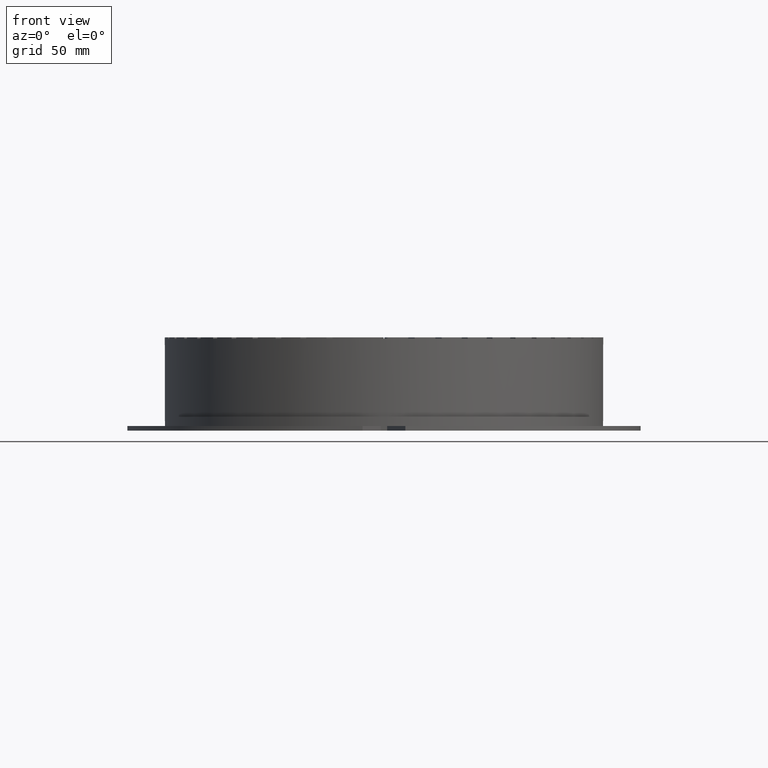
[diagram: clean part render]
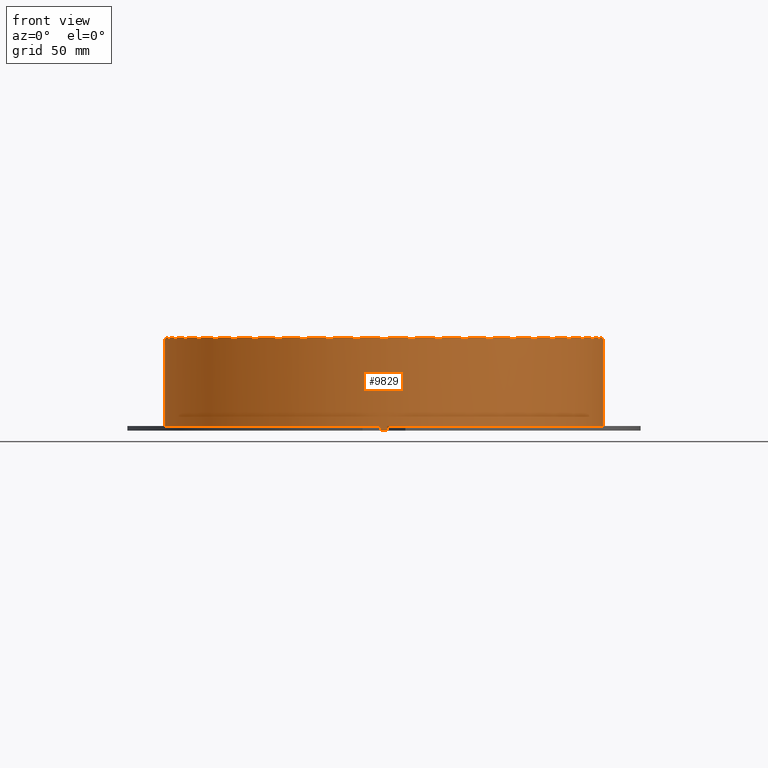
[diagram: same view with one face highlighted and labeled with its STEP entity id]
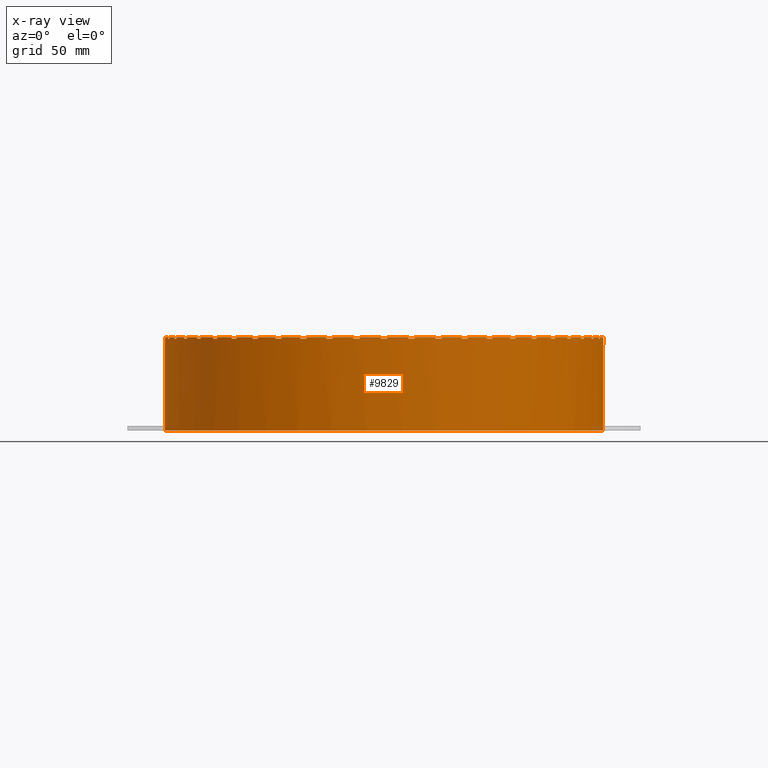
[diagram: x-ray of the same camera — body ghosted, the highlighted face saturated]
A machine part, front view. The second image highlights one B-rep face of the part: STEP entity #9829.
The next image is the same camera in x-ray: the body ghosted, the highlighted face saturated — about 0% of this face is hidden behind the body in this view.
In plain terms, the highlighted cylindrical surface (partial cylindrical patch) has radius 143 mm, axis along (0, 0, 1).
Its self-contained STEP definition (entity closure, byte-faithful):
#107=CARTESIAN_POINT('',(2.082201129823733,142.98483989030083,30.850000000000005));
#108=VERTEX_POINT('',#107);
#115=CARTESIAN_POINT('',(2.082201129823733,142.98483989030083,29.950000000000003));
#116=VERTEX_POINT('',#115);
#117=CARTESIAN_POINT('',(2.082201129823733,142.98483989030083,29.950000000000003));
#118=DIRECTION('',(0.0,0.0,1.0));
#119=VECTOR('',#118,0.900000000000002);
#120=LINE('',#117,#119);
#121=EDGE_CURVE('',#116,#108,#120,.T.);
#160=CARTESIAN_POINT('',(15.854969982133884,142.11833072079634,30.850000000000005));
#161=VERTEX_POINT('',#160);
#186=CARTESIAN_POINT('',(15.854969982133884,142.11833072079634,29.950000000000003));
#187=VERTEX_POINT('',#186);
#194=CARTESIAN_POINT('',(15.854969982133884,142.11833072079634,29.950000000000003));
#195=DIRECTION('',(0.0,0.0,1.0));
#196=VECTOR('',#195,0.900000000000002);
#197=LINE('',#194,#196);
#198=EDGE_CURVE('',#187,#161,#197,.T.);
#282=CARTESIAN_POINT('',(0.0,0.0,30.850000000000001));
#283=DIRECTION('',(0.0,0.0,-1.0));
#284=DIRECTION('',(0.124639416414563,0.992202104349632,0.0));
#285=AXIS2_PLACEMENT_3D('',#282,#283,#284);
#286=CIRCLE('',#285,143.0);
#287=EDGE_CURVE('',#108,#161,#286,.T.);
#299=CARTESIAN_POINT('',(19.98653468611748,141.59639271973219,30.850000000000005));
#300=VERTEX_POINT('',#299);
#307=CARTESIAN_POINT('',(19.98653468611748,141.59639271973219,29.950000000000003));
#308=VERTEX_POINT('',#307);
#309=CARTESIAN_POINT('',(19.98653468611748,141.59639271973219,29.950000000000003));
#310=DIRECTION('',(0.0,0.0,1.0));
#311=VECTOR('',#310,0.900000000000002);
#312=LINE('',#309,#311);
#313=EDGE_CURVE('',#308,#300,#312,.T.);
#345=CARTESIAN_POINT('',(33.542098746173387,139.01053057844922,30.850000000000005));
#346=VERTEX_POINT('',#345);
#371=CARTESIAN_POINT('',(33.542098746173387,139.01053057844922,29.950000000000003));
#372=VERTEX_POINT('',#371);
#379=CARTESIAN_POINT('',(33.542098746173387,139.01053057844922,29.950000000000003));
#380=DIRECTION('',(0.0,0.0,1.0));
#381=VECTOR('',#380,0.900000000000002);
#382=LINE('',#379,#381);
#383=EDGE_CURVE('',#372,#346,#382,.T.);
#436=CARTESIAN_POINT('',(0.0,0.0,30.850000000000001));
#437=DIRECTION('',(0.0,0.0,-1.0));
#438=DIRECTION('',(0.248012495475592,0.968756833311626,0.0));
#439=AXIS2_PLACEMENT_3D('',#436,#437,#438);
#440=CIRCLE('',#439,143.00000000000003);
#441=EDGE_CURVE('',#300,#346,#440,.T.);
#453=CARTESIAN_POINT('',(37.575668651034071,137.97488585038838,30.850000000000005));
#454=VERTEX_POINT('',#453);
#461=CARTESIAN_POINT('',(37.575668651034071,137.97488585038838,29.950000000000003));
#462=VERTEX_POINT('',#461);
#463=CARTESIAN_POINT('',(37.575668651034071,137.97488585038838,29.950000000000003));
#464=DIRECTION('',(0.0,0.0,1.0));
#465=VECTOR('',#464,0.900000000000002);
#466=LINE('',#463,#465);
#467=EDGE_CURVE('',#462,#454,#466,.T.);
#499=CARTESIAN_POINT('',(50.700248575907203,133.7104513280141,30.850000000000005));
#500=VERTEX_POINT('',#499);
#525=CARTESIAN_POINT('',(50.700248575907203,133.7104513280141,29.950000000000003));
#526=VERTEX_POINT('',#525);
#533=CARTESIAN_POINT('',(50.700248575907203,133.7104513280141,29.950000000000003));
#534=DIRECTION('',(0.0,0.0,1.0));
#535=VECTOR('',#534,0.900000000000002);
#536=LINE('',#533,#535);
#537=EDGE_CURVE('',#526,#500,#536,.T.);
#590=CARTESIAN_POINT('',(0.0,0.0,30.850000000000001));
#591=DIRECTION('',(0.0,0.0,-1.0));
#592=DIRECTION('',(0.367474269327487,0.930033688305015,0.0));
#593=AXIS2_PLACEMENT_3D('',#590,#591,#592);
#594=CIRCLE('',#593,143.0);
#595=EDGE_CURVE('',#454,#500,#594,.T.);
#607=CARTESIAN_POINT('',(54.572211874707421,132.17743260898226,30.850000000000005));
#608=VERTEX_POINT('',#607);
#615=CARTESIAN_POINT('',(54.572211874707421,132.17743260898226,29.950000000000003));
#616=VERTEX_POINT('',#615);
#617=CARTESIAN_POINT('',(54.572211874707421,132.17743260898226,29.950000000000003));
#618=DIRECTION('',(0.0,0.0,1.0));
#619=VECTOR('',#618,0.900000000000002);
#620=LINE('',#617,#619);
#621=EDGE_CURVE('',#616,#608,#620,.T.);
#653=CARTESIAN_POINT('',(67.058825198738518,126.30167838538428,30.850000000000005));
#654=VERTEX_POINT('',#653);
#679=CARTESIAN_POINT('',(67.058825198738518,126.30167838538428,29.950000000000003));
#680=VERTEX_POINT('',#679);
#687=CARTESIAN_POINT('',(67.058825198738518,126.30167838538428,29.950000000000003));
#688=DIRECTION('',(0.0,0.0,1.0));
#689=VECTOR('',#688,0.900000000000002);
#690=LINE('',#687,#689);
#691=EDGE_CURVE('',#680,#654,#690,.T.);
#744=CARTESIAN_POINT('',(0.0,0.0,30.850000000000001));
#745=DIRECTION('',(0.0,0.0,-1.0));
#746=DIRECTION('',(0.4811407544336,0.876643356458638,0.0));
#747=AXIS2_PLACEMENT_3D('',#744,#745,#746);
#748=CIRCLE('',#747,143.0);
#749=EDGE_CURVE('',#608,#654,#748,.T.);
#761=CARTESIAN_POINT('',(70.708118717257321,124.29546229636159,30.850000000000005));
#762=VERTEX_POINT('',#761);
#769=CARTESIAN_POINT('',(70.708118717257321,124.29546229636159,29.950000000000003));
#770=VERTEX_POINT('',#769);
#771=CARTESIAN_POINT('',(70.708118717257321,124.29546229636159,29.950000000000003));
#772=DIRECTION('',(0.0,0.0,1.0));
#773=VECTOR('',#772,0.900000000000002);
#774=LINE('',#771,#773);
#775=EDGE_CURVE('',#770,#762,#774,.T.);
#807=CARTESIAN_POINT('',(82.359844089185131,116.90105252565147,30.850000000000005));
#808=VERTEX_POINT('',#807);
#833=CARTESIAN_POINT('',(82.359844089185131,116.90105252565147,29.950000000000003));
#834=VERTEX_POINT('',#833);
#841=CARTESIAN_POINT('',(82.359844089185131,116.90105252565147,29.950000000000003));
#842=DIRECTION('',(0.0,0.0,1.0));
#843=VECTOR('',#842,0.900000000000002);
#844=LINE('',#841,#843);
#845=EDGE_CURVE('',#834,#808,#844,.T.);
#898=CARTESIAN_POINT('',(0.0,0.0,30.850000000000001));
#899=DIRECTION('',(0.0,0.0,-1.0));
#900=DIRECTION('',(0.587219362422739,0.809427835199551,0.0));
#901=AXIS2_PLACEMENT_3D('',#898,#899,#900);
#902=CIRCLE('',#901,143.0);
#903=EDGE_CURVE('',#762,#808,#902,.T.);
#915=CARTESIAN_POINT('',(85.728916288653437,114.45327829281715,30.850000000000005));
#916=VERTEX_POINT('',#915);
#923=CARTESIAN_POINT('',(85.728916288653437,114.45327829281715,29.950000000000003));
#924=VERTEX_POINT('',#923);
#925=CARTESIAN_POINT('',(85.728916288653437,114.45327829281715,29.950000000000003));
#926=DIRECTION('',(0.0,0.0,1.0));
#927=VECTOR('',#926,0.900000000000002);
#928=LINE('',#925,#927);
#929=EDGE_CURVE('',#924,#916,#928,.T.);
#961=CARTESIAN_POINT('',(96.361999038959368,105.65682723428526,30.850000000000005));
#962=VERTEX_POINT('',#961);
#987=CARTESIAN_POINT('',(96.361999038959368,105.65682723428526,29.950000000000003));
#988=VERTEX_POINT('',#987);
#995=CARTESIAN_POINT('',(96.361999038959368,105.65682723428526,29.950000000000003));
#996=DIRECTION('',(0.0,0.0,1.0));
#997=VECTOR('',#996,0.900000000000002);
#998=LINE('',#995,#997);
#999=EDGE_CURVE('',#988,#962,#998,.T.);
#1052=CARTESIAN_POINT('',(0.0,0.0,30.850000000000001));
#1053=DIRECTION('',(0.0,0.0,-1.0));
#1054=DIRECTION('',(0.684037170278628,0.729447153450616,0.0));
#1055=AXIS2_PLACEMENT_3D('',#1052,#1053,#1054);
#1056=CIRCLE('',#1055,142.99999999999997);
#1057=EDGE_CURVE('',#916,#962,#1056,.T.);
#1069=CARTESIAN_POINT('',(99.397717638205293,102.80609771952061,30.850000000000005));
#1070=VERTEX_POINT('',#1069);
#1077=CARTESIAN_POINT('',(99.397717638205293,102.80609771952061,29.950000000000003));
#1078=VERTEX_POINT('',#1077);
#1079=CARTESIAN_POINT('',(99.397717638205293,102.80609771952061,29.950000000000003));
#1080=DIRECTION('',(0.0,0.0,1.0));
#1081=VECTOR('',#1080,0.900000000000002);
#1082=LINE('',#1079,#1081);
#1083=EDGE_CURVE('',#1078,#1070,#1082,.T.);
#1115=CARTESIAN_POINT('',(108.8444677000212,92.746330661105134,30.850000000000005));
#1116=VERTEX_POINT('',#1115);
#1141=CARTESIAN_POINT('',(108.8444677000212,92.746330661105134,29.950000000000003));
#1142=VERTEX_POINT('',#1141);
#1149=CARTESIAN_POINT('',(108.8444677000212,92.746330661105134,29.950000000000003));
#1150=DIRECTION('',(0.0,0.0,1.0));
#1151=VECTOR('',#1150,0.900000000000002);
#1152=LINE('',#1149,#1151);
#1153=EDGE_CURVE('',#1142,#1116,#1152,.T.);
#1206=CARTESIAN_POINT('',(0.0,0.0,30.850000000000001));
#1207=DIRECTION('',(0.0,0.0,-1.0));
#1208=DIRECTION('',(0.770067303335225,0.637962654341157,0.0));
#1209=AXIS2_PLACEMENT_3D('',#1206,#1207,#1208);
#1210=CIRCLE('',#1209,143.0);
#1211=EDGE_CURVE('',#1070,#1116,#1210,.T.);
#1223=CARTESIAN_POINT('',(111.49895760328421,89.537603571801228,30.850000000000005));
#1224=VERTEX_POINT('',#1223);
#1231=CARTESIAN_POINT('',(111.49895760328421,89.537603571801228,29.950000000000003));
#1232=VERTEX_POINT('',#1231);
#1233=CARTESIAN_POINT('',(111.49895760328421,89.537603571801228,29.950000000000003));
#1234=DIRECTION('',(0.0,0.0,1.0));
#1235=VECTOR('',#1234,0.900000000000002);
#1236=LINE('',#1233,#1235);
#1237=EDGE_CURVE('',#1232,#1224,#1236,.T.);
#1269=CARTESIAN_POINT('',(119.61039408492036,78.373169049426949,30.850000000000005));
#1270=VERTEX_POINT('',#1269);
#1295=CARTESIAN_POINT('',(119.61039408492036,78.373169049426949,29.950000000000003));
#1296=VERTEX_POINT('',#1295);
#1303=CARTESIAN_POINT('',(119.61039408492036,78.373169049426949,29.950000000000003));
#1304=DIRECTION('',(0.0,0.0,1.0));
#1305=VECTOR('',#1304,0.900000000000002);
#1306=LINE('',#1303,#1305);
#1307=EDGE_CURVE('',#1296,#1270,#1306,.T.);
#1360=CARTESIAN_POINT('',(0.0,0.0,30.850000000000001));
#1361=DIRECTION('',(0.0,0.0,-1.0));
#1362=DIRECTION('',(0.843953015002316,0.53641710307232,0.0));
#1363=AXIS2_PLACEMENT_3D('',#1360,#1361,#1362);
#1364=CIRCLE('',#1363,143.0);
#1365=EDGE_CURVE('',#1224,#1270,#1364,.T.);
#1377=CARTESIAN_POINT('',(121.84179240071063,74.857047928582816,30.850000000000005));
#1378=VERTEX_POINT('',#1377);
#1385=CARTESIAN_POINT('',(121.84179240071063,74.857047928582816,29.950000000000003));
#1386=VERTEX_POINT('',#1385);
#1387=CARTESIAN_POINT('',(121.84179240071063,74.857047928582816,29.950000000000003));
#1388=DIRECTION('',(0.0,0.0,1.0));
#1389=VECTOR('',#1388,0.900000000000002);
#1390=LINE('',#1387,#1389);
#1391=EDGE_CURVE('',#1386,#1378,#1390,.T.);
#1423=CARTESIAN_POINT('',(128.4899931033143,62.764015743977488,30.850000000000005));
#1424=VERTEX_POINT('',#1423);
#1449=CARTESIAN_POINT('',(128.4899931033143,62.764015743977488,29.950000000000003));
#1450=VERTEX_POINT('',#1449);
#1457=CARTESIAN_POINT('',(128.4899931033143,62.764015743977488,29.950000000000003));
#1458=DIRECTION('',(0.0,0.0,1.0));
#1459=VECTOR('',#1458,0.900000000000002);
#1460=LINE('',#1457,#1459);
#1461=EDGE_CURVE('',#1450,#1424,#1460,.T.);
#1514=CARTESIAN_POINT('',(0.0,0.0,30.850000000000001));
#1515=DIRECTION('',(0.0,0.0,-1.0));
#1516=DIRECTION('',(0.904529083469726,0.426411933647989,0.0));
#1517=AXIS2_PLACEMENT_3D('',#1514,#1515,#1516);
#1518=CIRCLE('',#1517,143.0);
#1519=EDGE_CURVE('',#1378,#1424,#1518,.T.);
#1531=CARTESIAN_POINT('',(130.263109347219,58.995951922097724,30.850000000000005));
#1532=VERTEX_POINT('',#1531);
#1539=CARTESIAN_POINT('',(130.263109347219,58.995951922097724,29.950000000000003));
#1540=VERTEX_POINT('',#1539);
#1541=CARTESIAN_POINT('',(130.263109347219,58.995951922097724,29.950000000000003));
#1542=DIRECTION('',(0.0,0.0,1.0));
#1543=VECTOR('',#1542,0.900000000000002);
#1544=LINE('',#1541,#1543);
#1545=EDGE_CURVE('',#1540,#1532,#1544,.T.);
#1577=CARTESIAN_POINT('',(135.34322817426758,46.165036416839847,30.850000000000005));
#1578=VERTEX_POINT('',#1577);
#1603=CARTESIAN_POINT('',(135.34322817426758,46.165036416839847,29.950000000000003));
#1604=VERTEX_POINT('',#1603);
#1611=CARTESIAN_POINT('',(135.34322817426758,46.165036416839847,29.950000000000003));
#1612=DIRECTION('',(0.0,0.0,1.0));
#1613=VECTOR('',#1612,0.900000000000002);
#1614=LINE('',#1611,#1613);
#1615=EDGE_CURVE('',#1604,#1578,#1614,.T.);
#1668=CARTESIAN_POINT('',(0.0,0.0,30.850000000000001));
#1669=DIRECTION('',(0.0,0.0,-1.0));
#1670=DIRECTION('',(0.950840187951336,0.309681993303886,0.0));
#1671=AXIS2_PLACEMENT_3D('',#1668,#1669,#1670);
#1672=CIRCLE('',#1671,143.0);
#1673=EDGE_CURVE('',#1532,#1578,#1672,.T.);
#1685=CARTESIAN_POINT('',(136.63009924391207,42.204454511327867,30.850000000000005));
#1686=VERTEX_POINT('',#1685);
#1693=CARTESIAN_POINT('',(136.63009924391207,42.204454511327867,29.950000000000003));
#1694=VERTEX_POINT('',#1693);
#1695=CARTESIAN_POINT('',(136.63009924391207,42.204454511327867,29.950000000000003));
#1696=DIRECTION('',(0.0,0.0,1.0));
#1697=VECTOR('',#1696,0.900000000000002);
#1698=LINE('',#1695,#1697);
#1699=EDGE_CURVE('',#1694,#1686,#1698,.T.);
#1731=CARTESIAN_POINT('',(140.06201968678707,28.838006887752758,30.850000000000005));
#1732=VERTEX_POINT('',#1731);
#1757=CARTESIAN_POINT('',(140.06201968678707,28.838006887752758,29.950000000000003));
#1758=VERTEX_POINT('',#1757);
#1765=CARTESIAN_POINT('',(140.06201968678707,28.838006887752758,29.950000000000003));
#1766=DIRECTION('',(0.0,0.0,1.0));
#1767=VECTOR('',#1766,0.900000000000002);
#1768=LINE('',#1765,#1767);
#1769=EDGE_CURVE('',#1758,#1732,#1768,.T.);
#1822=CARTESIAN_POINT('',(0.0,0.0,30.850000000000001));
#1823=DIRECTION('',(0.0,0.0,-1.0));
#1824=DIRECTION('',(0.982155974664557,0.188068182930325,0.0));
#1825=AXIS2_PLACEMENT_3D('',#1822,#1823,#1824);
#1826=CIRCLE('',#1825,143.0);
#1827=EDGE_CURVE('',#1686,#1732,#1826,.T.);
#1839=CARTESIAN_POINT('',(140.84235085666359,24.747367641195193,30.850000000000005));
#1840=VERTEX_POINT('',#1839);
#1847=CARTESIAN_POINT('',(140.84235085666359,24.747367641195193,29.950000000000003));
#1848=VERTEX_POINT('',#1847);
#1849=CARTESIAN_POINT('',(140.84235085666359,24.747367641195193,29.950000000000003));
#1850=DIRECTION('',(0.0,0.0,1.0));
#1851=VECTOR('',#1850,0.900000000000002);
#1852=LINE('',#1849,#1851);
#1853=EDGE_CURVE('',#1848,#1840,#1852,.T.);
#1885=CARTESIAN_POINT('',(142.57194947985101,11.056184763055397,30.850000000000005));
#1886=VERTEX_POINT('',#1885);
#1911=CARTESIAN_POINT('',(142.57194947985101,11.056184763055397,29.950000000000003));
#1912=VERTEX_POINT('',#1911);
#1919=CARTESIAN_POINT('',(142.57194947985101,11.056184763055397,29.950000000000003));
#1920=DIRECTION('',(0.0,0.0,1.0));
#1921=VECTOR('',#1920,0.900000000000002);
#1922=LINE('',#1919,#1921);
#1923=EDGE_CURVE('',#1912,#1886,#1922,.T.);
#1976=CARTESIAN_POINT('',(0.0,0.0,30.850000000000001));
#1977=DIRECTION('',(0.0,0.0,-1.0));
#1978=DIRECTION('',(0.997982574945777,0.063488424965467,0.0));
#1979=AXIS2_PLACEMENT_3D('',#1976,#1977,#1978);
#1980=CIRCLE('',#1979,143.0);
#1981=EDGE_CURVE('',#1840,#1886,#1980,.T.);
#1993=CARTESIAN_POINT('',(142.83343446126332,6.900000000000008,30.850000000000005));
#1994=VERTEX_POINT('',#1993);
#2001=CARTESIAN_POINT('',(142.83343446126332,6.900000000000008,29.950000000000003));
#2002=VERTEX_POINT('',#2001);
#2003=CARTESIAN_POINT('',(142.83343446126332,6.900000000000008,29.950000000000003));
#2004=DIRECTION('',(0.0,0.0,1.0));
#2005=VECTOR('',#2004,0.900000000000002);
#2006=LINE('',#2003,#2005);
#2007=EDGE_CURVE('',#2002,#1994,#2006,.T.);
#2039=CARTESIAN_POINT('',(142.83343446126332,-6.899999999999997,30.850000000000005));
#2040=VERTEX_POINT('',#2039);
#2065=CARTESIAN_POINT('',(142.83343446126332,-6.899999999999997,29.950000000000003));
#2066=VERTEX_POINT('',#2065);
#2073=CARTESIAN_POINT('',(142.83343446126332,-6.899999999999997,29.950000000000003));
#2074=DIRECTION('',(0.0,0.0,1.0));
#2075=VECTOR('',#2074,0.900000000000002);
#2076=LINE('',#2073,#2075);
#2077=EDGE_CURVE('',#2066,#2040,#2076,.T.);
#2130=CARTESIAN_POINT('',(0.0,0.0,30.850000000000001));
#2131=DIRECTION('',(0.0,0.0,-1.0));
#2132=DIRECTION('',(0.99807039385421,-0.062092583387245,0.0));
#2133=AXIS2_PLACEMENT_3D('',#2130,#2131,#2132);
#2134=CIRCLE('',#2133,143.0);
#2135=EDGE_CURVE('',#1994,#2040,#2134,.T.);
#2147=CARTESIAN_POINT('',(142.57194947985101,-11.056184763055374,30.850000000000005));
#2148=VERTEX_POINT('',#2147);
#2155=CARTESIAN_POINT('',(142.57194947985101,-11.056184763055374,29.950000000000003));
#2156=VERTEX_POINT('',#2155);
#2157=CARTESIAN_POINT('',(142.57194947985101,-11.056184763055374,29.950000000000003));
#2158=DIRECTION('',(0.0,0.0,1.0));
#2159=VECTOR('',#2158,0.900000000000002);
#2160=LINE('',#2157,#2159);
#2161=EDGE_CURVE('',#2156,#2148,#2160,.T.);
#2193=CARTESIAN_POINT('',(140.84235085666361,-24.747367641195179,30.850000000000005));
#2194=VERTEX_POINT('',#2193);
#2219=CARTESIAN_POINT('',(140.84235085666361,-24.747367641195179,29.950000000000003));
#2220=VERTEX_POINT('',#2219);
#2227=CARTESIAN_POINT('',(140.84235085666361,-24.747367641195179,29.950000000000003));
#2228=DIRECTION('',(0.0,0.0,1.0));
#2229=VECTOR('',#2228,0.900000000000002);
#2230=LINE('',#2227,#2229);
#2231=EDGE_CURVE('',#2220,#2194,#2230,.T.);
#2284=CARTESIAN_POINT('',(0.0,0.0,30.850000000000001));
#2285=DIRECTION('',(0.0,0.0,-1.0));
#2286=DIRECTION('',(0.982418046433208,-0.186694354607627,0.0));
#2287=AXIS2_PLACEMENT_3D('',#2284,#2285,#2286);
#2288=CIRCLE('',#2287,143.0);
#2289=EDGE_CURVE('',#2148,#2194,#2288,.T.);
#2301=CARTESIAN_POINT('',(140.06201968678707,-28.838006887752741,30.850000000000005));
#2302=VERTEX_POINT('',#2301);
#2309=CARTESIAN_POINT('',(140.06201968678707,-28.838006887752741,29.950000000000003));
#2310=VERTEX_POINT('',#2309);
#2311=CARTESIAN_POINT('',(140.06201968678707,-28.838006887752741,29.950000000000003));
#2312=DIRECTION('',(0.0,0.0,1.0));
#2313=VECTOR('',#2312,0.900000000000002);
#2314=LINE('',#2311,#2313);
#2315=EDGE_CURVE('',#2310,#2302,#2314,.T.);
#2347=CARTESIAN_POINT('',(136.63009924391207,-42.20445451132786,30.850000000000005));
#2348=VERTEX_POINT('',#2347);
#2373=CARTESIAN_POINT('',(136.63009924391207,-42.20445451132786,29.950000000000003));
#2374=VERTEX_POINT('',#2373);
#2381=CARTESIAN_POINT('',(136.63009924391207,-42.20445451132786,29.950000000000003));
#2382=DIRECTION('',(0.0,0.0,1.0));
#2383=VECTOR('',#2382,0.900000000000002);
#2384=LINE('',#2381,#2383);
#2385=EDGE_CURVE('',#2374,#2348,#2384,.T.);
#2438=CARTESIAN_POINT('',(0.0,0.0,30.850000000000001));
#2439=DIRECTION('',(0.0,0.0,-1.0));
#2440=DIRECTION('',(0.951272379551861,-0.308351844330047,0.0));
#2441=AXIS2_PLACEMENT_3D('',#2438,#2439,#2440);
#2442=CIRCLE('',#2441,143.0);
#2443=EDGE_CURVE('',#2302,#2348,#2442,.T.);
#2455=CARTESIAN_POINT('',(135.34322817426758,-46.165036416839833,30.850000000000005));
#2456=VERTEX_POINT('',#2455);
#2463=CARTESIAN_POINT('',(135.34322817426758,-46.165036416839833,29.950000000000003));
#2464=VERTEX_POINT('',#2463);
#2465=CARTESIAN_POINT('',(135.34322817426758,-46.165036416839833,29.950000000000003));
#2466=DIRECTION('',(0.0,0.0,1.0));
#2467=VECTOR('',#2466,0.900000000000002);
#2468=LINE('',#2465,#2467);
#2469=EDGE_CURVE('',#2464,#2456,#2468,.T.);
#2501=CARTESIAN_POINT('',(130.26310934721903,-58.995951922097717,30.850000000000005));
#2502=VERTEX_POINT('',#2501);
#2527=CARTESIAN_POINT('',(130.26310934721903,-58.995951922097717,29.950000000000003));
#2528=VERTEX_POINT('',#2527);
#2535=CARTESIAN_POINT('',(130.26310934721903,-58.995951922097717,29.950000000000003));
#2536=DIRECTION('',(0.0,0.0,1.0));
#2537=VECTOR('',#2536,0.900000000000002);
#2538=LINE('',#2535,#2537);
#2539=EDGE_CURVE('',#2528,#2502,#2538,.T.);
#2592=CARTESIAN_POINT('',(0.0,0.0,30.850000000000001));
#2593=DIRECTION('',(0.0,0.0,-1.0));
#2594=DIRECTION('',(0.905124578982405,-0.425146441266917,0.0));
#2595=AXIS2_PLACEMENT_3D('',#2592,#2593,#2594);
#2596=CIRCLE('',#2595,143.0);
#2597=EDGE_CURVE('',#2456,#2502,#2596,.T.);
#2609=CARTESIAN_POINT('',(128.48999310331428,-62.76401574397746,30.850000000000005));
#2610=VERTEX_POINT('',#2609);
#2617=CARTESIAN_POINT('',(128.48999310331428,-62.76401574397746,29.950000000000003));
#2618=VERTEX_POINT('',#2617);
#2619=CARTESIAN_POINT('',(128.48999310331428,-62.76401574397746,29.950000000000003));
#2620=DIRECTION('',(0.0,0.0,1.0));
#2621=VECTOR('',#2620,0.900000000000002);
#2622=LINE('',#2619,#2621);
#2623=EDGE_CURVE('',#2618,#2610,#2622,.T.);
#2655=CARTESIAN_POINT('',(121.84179240071063,-74.857047928582787,30.850000000000005));
#2656=VERTEX_POINT('',#2655);
#2681=CARTESIAN_POINT('',(121.84179240071063,-74.857047928582787,29.950000000000003));
#2682=VERTEX_POINT('',#2681);
#2689=CARTESIAN_POINT('',(121.84179240071063,-74.857047928582787,29.950000000000003));
#2690=DIRECTION('',(0.0,0.0,1.0));
#2691=VECTOR('',#2690,0.900000000000002);
#2692=LINE('',#2689,#2691);
#2693=EDGE_CURVE('',#2682,#2656,#2692,.T.);
#2746=CARTESIAN_POINT('',(0.0,0.0,30.850000000000001));
#2747=DIRECTION('',(0.0,0.0,-1.0));
#2748=DIRECTION('',(0.844702423107182,-0.535236224854835,0.0));
#2749=AXIS2_PLACEMENT_3D('',#2746,#2747,#2748);
#2750=CIRCLE('',#2749,142.99999999999997);
#2751=EDGE_CURVE('',#2610,#2656,#2750,.T.);
#2763=CARTESIAN_POINT('',(119.61039408492036,-78.373169049426934,30.850000000000005));
#2764=VERTEX_POINT('',#2763);
#2771=CARTESIAN_POINT('',(119.61039408492036,-78.373169049426934,29.950000000000003));
#2772=VERTEX_POINT('',#2771);
#2773=CARTESIAN_POINT('',(119.61039408492036,-78.373169049426934,29.950000000000003));
#2774=DIRECTION('',(0.0,0.0,1.0));
#2775=VECTOR('',#2774,0.900000000000002);
#2776=LINE('',#2773,#2775);
#2777=EDGE_CURVE('',#2772,#2764,#2776,.T.);
#2809=CARTESIAN_POINT('',(111.49895760328423,-89.537603571801228,30.850000000000005));
#2810=VERTEX_POINT('',#2809);
#2835=CARTESIAN_POINT('',(111.49895760328423,-89.537603571801228,29.950000000000003));
#2836=VERTEX_POINT('',#2835);
#2843=CARTESIAN_POINT('',(111.49895760328423,-89.537603571801228,29.950000000000003));
#2844=DIRECTION('',(0.0,0.0,1.0));
#2845=VECTOR('',#2844,0.900000000000002);
#2846=LINE('',#2843,#2845);
#2847=EDGE_CURVE('',#2836,#2810,#2846,.T.);
#2900=CARTESIAN_POINT('',(0.0,0.0,30.850000000000001));
#2901=DIRECTION('',(0.0,0.0,-1.0));
#2902=DIRECTION('',(0.77095880541879,-0.636885013442169,0.0));
#2903=AXIS2_PLACEMENT_3D('',#2900,#2901,#2902);
#2904=CIRCLE('',#2903,143.0);
#2905=EDGE_CURVE('',#2764,#2810,#2904,.T.);
#2917=CARTESIAN_POINT('',(108.84446770002121,-92.746330661105091,30.850000000000005));
#2918=VERTEX_POINT('',#2917);
#2925=CARTESIAN_POINT('',(108.84446770002121,-92.746330661105091,29.950000000000003));
#2926=VERTEX_POINT('',#2925);
#2927=CARTESIAN_POINT('',(108.84446770002121,-92.746330661105091,29.950000000000003));
#2928=DIRECTION('',(0.0,0.0,1.0));
#2929=VECTOR('',#2928,0.900000000000002);
#2930=LINE('',#2927,#2929);
#2931=EDGE_CURVE('',#2926,#2918,#2930,.T.);
#2963=CARTESIAN_POINT('',(99.397717638205322,-102.80609771952058,30.850000000000005));
#2964=VERTEX_POINT('',#2963);
#2989=CARTESIAN_POINT('',(99.397717638205322,-102.80609771952058,29.950000000000003));
#2990=VERTEX_POINT('',#2989);
#2997=CARTESIAN_POINT('',(99.397717638205322,-102.80609771952058,29.950000000000003));
#2998=DIRECTION('',(0.0,0.0,1.0));
#2999=VECTOR('',#2998,0.900000000000002);
#3000=LINE('',#2997,#2999);
#3001=EDGE_CURVE('',#2990,#2964,#3000,.T.);
#3054=CARTESIAN_POINT('',(0.0,0.0,30.850000000000001));
#3055=DIRECTION('',(0.0,0.0,-1.0));
#3056=DIRECTION('',(0.685056706820477,-0.728489744910856,0.0));
#3057=AXIS2_PLACEMENT_3D('',#3054,#3055,#3056);
#3058=CIRCLE('',#3057,143.0);
#3059=EDGE_CURVE('',#2918,#2964,#3058,.T.);
#3071=CARTESIAN_POINT('',(96.361999038959411,-105.6568272342852,30.850000000000005));
#3072=VERTEX_POINT('',#3071);
#3079=CARTESIAN_POINT('',(96.361999038959411,-105.6568272342852,29.950000000000003));
#3080=VERTEX_POINT('',#3079);
#3081=CARTESIAN_POINT('',(96.361999038959411,-105.6568272342852,29.950000000000003));
#3082=DIRECTION('',(0.0,0.0,1.0));
#3083=VECTOR('',#3082,0.900000000000002);
#3084=LINE('',#3081,#3083);
#3085=EDGE_CURVE('',#3080,#3072,#3084,.T.);
#3117=CARTESIAN_POINT('',(85.728916288653522,-114.45327829281712,30.850000000000005));
#3118=VERTEX_POINT('',#3117);
#3143=CARTESIAN_POINT('',(85.728916288653522,-114.45327829281712,29.950000000000003));
#3144=VERTEX_POINT('',#3143);
#3151=CARTESIAN_POINT('',(85.728916288653522,-114.45327829281712,29.950000000000003));
#3152=DIRECTION('',(0.0,0.0,1.0));
#3153=VECTOR('',#3152,0.900000000000002);
#3154=LINE('',#3151,#3153);
#3155=EDGE_CURVE('',#3144,#3118,#3154,.T.);
#3208=CARTESIAN_POINT('',(0.0,0.0,30.850000000000001));
#3209=DIRECTION('',(0.0,0.0,-1.0));
#3210=DIRECTION('',(0.588350854722565,-0.808605757923617,0.0));
#3211=AXIS2_PLACEMENT_3D('',#3208,#3209,#3210);
#3212=CIRCLE('',#3211,142.99999999999997);
#3213=EDGE_CURVE('',#3072,#3118,#3212,.T.);
#3225=CARTESIAN_POINT('',(82.359844089185188,-116.90105252565144,30.850000000000005));
#3226=VERTEX_POINT('',#3225);
#3233=CARTESIAN_POINT('',(82.359844089185188,-116.90105252565144,29.950000000000003));
#3234=VERTEX_POINT('',#3233);
#3235=CARTESIAN_POINT('',(82.359844089185188,-116.90105252565144,29.950000000000003));
#3236=DIRECTION('',(0.0,0.0,1.0));
#3237=VECTOR('',#3236,0.900000000000002);
#3238=LINE('',#3235,#3237);
#3239=EDGE_CURVE('',#3234,#3226,#3238,.T.);
#3271=CARTESIAN_POINT('',(70.708118717257392,-124.29546229636159,30.850000000000005));
#3272=VERTEX_POINT('',#3271);
#3297=CARTESIAN_POINT('',(70.708118717257392,-124.29546229636159,29.950000000000003));
#3298=VERTEX_POINT('',#3297);
#3305=CARTESIAN_POINT('',(70.708118717257392,-124.29546229636159,29.950000000000003));
#3306=DIRECTION('',(0.0,0.0,1.0));
#3307=VECTOR('',#3306,0.900000000000002);
#3308=LINE('',#3305,#3307);
#3309=EDGE_CURVE('',#3298,#3272,#3308,.T.);
#3362=CARTESIAN_POINT('',(0.0,0.0,30.850000000000001));
#3363=DIRECTION('',(0.0,0.0,-1.0));
#3364=DIRECTION('',(0.482366358181913,-0.875969575096258,0.0));
#3365=AXIS2_PLACEMENT_3D('',#3362,#3363,#3364);
#3366=CIRCLE('',#3365,143.0);
#3367=EDGE_CURVE('',#3226,#3272,#3366,.T.);
#3379=CARTESIAN_POINT('',(67.058825198738504,-126.30167838538425,30.850000000000005));
#3380=VERTEX_POINT('',#3379);
#3387=CARTESIAN_POINT('',(67.058825198738504,-126.30167838538425,29.950000000000003));
#3388=VERTEX_POINT('',#3387);
#3389=CARTESIAN_POINT('',(67.058825198738504,-126.30167838538425,29.950000000000003));
#3390=DIRECTION('',(0.0,0.0,1.0));
#3391=VECTOR('',#3390,0.900000000000002);
#3392=LINE('',#3389,#3391);
#3393=EDGE_CURVE('',#3388,#3380,#3392,.T.);
#3425=CARTESIAN_POINT('',(54.572211874707435,-132.17743260898229,30.850000000000005));
#3426=VERTEX_POINT('',#3425);
#3451=CARTESIAN_POINT('',(54.572211874707435,-132.17743260898229,29.950000000000003));
#3452=VERTEX_POINT('',#3451);
#3459=CARTESIAN_POINT('',(54.572211874707435,-132.17743260898229,29.950000000000003));
#3460=DIRECTION('',(0.0,0.0,1.0));
#3461=VECTOR('',#3460,0.900000000000002);
#3462=LINE('',#3459,#3461);
#3463=EDGE_CURVE('',#3452,#3426,#3462,.T.);
#3516=CARTESIAN_POINT('',(0.0,0.0,30.850000000000001));
#3517=DIRECTION('',(0.0,0.0,-1.0));
#3518=DIRECTION('',(0.368774656021038,-0.92951882879077,0.0));
#3519=AXIS2_PLACEMENT_3D('',#3516,#3517,#3518);
#3520=CIRCLE('',#3519,142.99999999999997);
#3521=EDGE_CURVE('',#3380,#3426,#3520,.T.);
#3533=CARTESIAN_POINT('',(50.700248575907203,-133.71045132801407,30.850000000000005));
#3534=VERTEX_POINT('',#3533);
#3541=CARTESIAN_POINT('',(50.700248575907203,-133.71045132801407,29.950000000000003));
#3542=VERTEX_POINT('',#3541);
#3543=CARTESIAN_POINT('',(50.700248575907203,-133.71045132801407,29.950000000000003));
#3544=DIRECTION('',(0.0,0.0,1.0));
#3545=VECTOR('',#3544,0.900000000000002);
#3546=LINE('',#3543,#3545);
#3547=EDGE_CURVE('',#3542,#3534,#3546,.T.);
#3579=CARTESIAN_POINT('',(37.575668651034093,-137.97488585038838,30.850000000000005));
#3580=VERTEX_POINT('',#3579);
#3605=CARTESIAN_POINT('',(37.575668651034093,-137.97488585038838,29.950000000000003));
#3606=VERTEX_POINT('',#3605);
#3613=CARTESIAN_POINT('',(37.575668651034093,-137.97488585038838,29.950000000000003));
#3614=DIRECTION('',(0.0,0.0,1.0));
#3615=VECTOR('',#3614,0.900000000000002);
#3616=LINE('',#3613,#3615);
#3617=EDGE_CURVE('',#3606,#3580,#3616,.T.);
#3670=CARTESIAN_POINT('',(0.0,0.0,30.850000000000001));
#3671=DIRECTION('',(0.0,0.0,-1.0));
#3672=DIRECTION('',(0.249367157239409,-0.968409015287619,0.0));
#3673=AXIS2_PLACEMENT_3D('',#3670,#3671,#3672);
#3674=CIRCLE('',#3673,143.0);
#3675=EDGE_CURVE('',#3534,#3580,#3674,.T.);
#3687=CARTESIAN_POINT('',(33.542098746173409,-139.01053057844916,30.850000000000005));
#3688=VERTEX_POINT('',#3687);
#3695=CARTESIAN_POINT('',(33.542098746173409,-139.01053057844916,29.950000000000003));
#3696=VERTEX_POINT('',#3695);
#3697=CARTESIAN_POINT('',(33.542098746173409,-139.01053057844916,29.950000000000003));
#3698=DIRECTION('',(0.0,0.0,1.0));
#3699=VECTOR('',#3698,0.900000000000002);
#3700=LINE('',#3697,#3699);
#3701=EDGE_CURVE('',#3696,#3688,#3700,.T.);
#3733=CARTESIAN_POINT('',(19.986534686117498,-141.59639271973219,30.850000000000005));
#3734=VERTEX_POINT('',#3733);
#3759=CARTESIAN_POINT('',(19.986534686117498,-141.59639271973219,29.950000000000003));
#3760=VERTEX_POINT('',#3759);
#3767=CARTESIAN_POINT('',(19.986534686117498,-141.59639271973219,29.950000000000003));
#3768=DIRECTION('',(0.0,0.0,1.0));
#3769=VECTOR('',#3768,0.900000000000002);
#3770=LINE('',#3767,#3769);
#3771=EDGE_CURVE('',#3760,#3734,#3770,.T.);
#3824=CARTESIAN_POINT('',(0.0,0.0,30.850000000000001));
#3825=DIRECTION('',(0.0,0.0,-1.0));
#3826=DIRECTION('',(0.126026989423395,-0.992026813113877,0.0));
#3827=AXIS2_PLACEMENT_3D('',#3824,#3825,#3826);
#3828=CIRCLE('',#3827,143.0);
#3829=EDGE_CURVE('',#3688,#3734,#3828,.T.);
#3841=CARTESIAN_POINT('',(15.854969982133959,-142.11833072079631,30.850000000000005));
#3842=VERTEX_POINT('',#3841);
#3849=CARTESIAN_POINT('',(15.854969982133959,-142.11833072079631,29.950000000000003));
#3850=VERTEX_POINT('',#3849);
#3851=CARTESIAN_POINT('',(15.854969982133959,-142.11833072079631,29.950000000000003));
#3852=DIRECTION('',(0.0,0.0,1.0));
#3853=VECTOR('',#3852,0.900000000000002);
#3854=LINE('',#3851,#3853);
#3855=EDGE_CURVE('',#3850,#3842,#3854,.T.);
#3887=CARTESIAN_POINT('',(2.082201129823806,-142.98483989030083,30.850000000000005));
#3888=VERTEX_POINT('',#3887);
#3913=CARTESIAN_POINT('',(2.082201129823806,-142.98483989030083,29.950000000000003));
#3914=VERTEX_POINT('',#3913);
#3921=CARTESIAN_POINT('',(2.082201129823806,-142.98483989030083,29.950000000000003));
#3922=DIRECTION('',(0.0,0.0,1.0));
#3923=VECTOR('',#3922,0.900000000000002);
#3924=LINE('',#3921,#3923);
#3925=EDGE_CURVE('',#3914,#3888,#3924,.T.);
#3978=CARTESIAN_POINT('',(0.0,0.0,30.850000000000001));
#3979=DIRECTION('',(0.0,0.0,-1.0));
#3980=DIRECTION('',(0.000699300699301,-0.999999755489236,0.0));
#3981=AXIS2_PLACEMENT_3D('',#3978,#3979,#3980);
#3982=CIRCLE('',#3981,143.00000000000003);
#3983=EDGE_CURVE('',#3842,#3888,#3982,.T.);
#3995=CARTESIAN_POINT('',(-2.082201129823769,-142.98483989030086,30.850000000000005));
#3996=VERTEX_POINT('',#3995);
#4003=CARTESIAN_POINT('',(-2.082201129823769,-142.98483989030086,29.950000000000003));
#4004=VERTEX_POINT('',#4003);
#4005=CARTESIAN_POINT('',(-2.082201129823769,-142.98483989030086,29.950000000000003));
#4006=DIRECTION('',(0.0,0.0,1.0));
#4007=VECTOR('',#4006,0.900000000000002);
#4008=LINE('',#4005,#4007);
#4009=EDGE_CURVE('',#4004,#3996,#4008,.T.);
#4041=CARTESIAN_POINT('',(-15.85496998213393,-142.11833072079631,30.850000000000005));
#4042=VERTEX_POINT('',#4041);
#4067=CARTESIAN_POINT('',(-15.85496998213393,-142.11833072079631,29.950000000000003));
#4068=VERTEX_POINT('',#4067);
#4075=CARTESIAN_POINT('',(-15.85496998213393,-142.11833072079631,29.950000000000003));
#4076=DIRECTION('',(0.0,0.0,1.0));
#4077=VECTOR('',#4076,0.900000000000002);
#4078=LINE('',#4075,#4077);
#4079=EDGE_CURVE('',#4068,#4042,#4078,.T.);
#4132=CARTESIAN_POINT('',(0.0,0.0,30.850000000000001));
#4133=DIRECTION('',(0.0,0.0,-1.0));
#4134=DIRECTION('',(-0.124639416414564,-0.992202104349632,0.0));
#4135=AXIS2_PLACEMENT_3D('',#4132,#4133,#4134);
#4136=CIRCLE('',#4135,143.0);
#4137=EDGE_CURVE('',#3996,#4042,#4136,.T.);
#4149=CARTESIAN_POINT('',(-19.986534686117533,-141.59639271973217,30.850000000000005));
#4150=VERTEX_POINT('',#4149);
#4157=CARTESIAN_POINT('',(-19.986534686117533,-141.59639271973217,29.950000000000003));
#4158=VERTEX_POINT('',#4157);
#4159=CARTESIAN_POINT('',(-19.986534686117533,-141.59639271973217,29.950000000000003));
#4160=DIRECTION('',(0.0,0.0,1.0));
#4161=VECTOR('',#4160,0.900000000000002);
#4162=LINE('',#4159,#4161);
#4163=EDGE_CURVE('',#4158,#4150,#4162,.T.);
#4195=CARTESIAN_POINT('',(-33.542098746173437,-139.01053057844919,30.850000000000005));
#4196=VERTEX_POINT('',#4195);
#4221=CARTESIAN_POINT('',(-33.542098746173437,-139.01053057844919,29.950000000000003));
#4222=VERTEX_POINT('',#4221);
#4229=CARTESIAN_POINT('',(-33.542098746173437,-139.01053057844919,29.950000000000003));
#4230=DIRECTION('',(0.0,0.0,1.0));
#4231=VECTOR('',#4230,0.900000000000002);
#4232=LINE('',#4229,#4231);
#4233=EDGE_CURVE('',#4222,#4196,#4232,.T.);
#4286=CARTESIAN_POINT('',(0.0,0.0,30.850000000000001));
#4287=DIRECTION('',(0.0,0.0,-1.0));
#4288=DIRECTION('',(-0.248012495475592,-0.968756833311626,0.0));
#4289=AXIS2_PLACEMENT_3D('',#4286,#4287,#4288);
#4290=CIRCLE('',#4289,143.0);
#4291=EDGE_CURVE('',#4150,#4196,#4290,.T.);
#4303=CARTESIAN_POINT('',(-37.575668651034057,-137.97488585038838,30.850000000000005));
#4304=VERTEX_POINT('',#4303);
#4311=CARTESIAN_POINT('',(-37.575668651034057,-137.97488585038838,29.950000000000003));
#4312=VERTEX_POINT('',#4311);
#4313=CARTESIAN_POINT('',(-37.575668651034057,-137.97488585038838,29.950000000000003));
#4314=DIRECTION('',(0.0,0.0,1.0));
#4315=VECTOR('',#4314,0.900000000000002);
#4316=LINE('',#4313,#4315);
#4317=EDGE_CURVE('',#4312,#4304,#4316,.T.);
#4349=CARTESIAN_POINT('',(-50.700248575907182,-133.7104513280141,30.850000000000005));
#4350=VERTEX_POINT('',#4349);
#4375=CARTESIAN_POINT('',(-50.700248575907182,-133.7104513280141,29.950000000000003));
#4376=VERTEX_POINT('',#4375);
#4383=CARTESIAN_POINT('',(-50.700248575907182,-133.7104513280141,29.950000000000003));
#4384=DIRECTION('',(0.0,0.0,1.0));
#4385=VECTOR('',#4384,0.900000000000002);
#4386=LINE('',#4383,#4385);
#4387=EDGE_CURVE('',#4376,#4350,#4386,.T.);
#4440=CARTESIAN_POINT('',(0.0,0.0,30.850000000000001));
#4441=DIRECTION('',(0.0,0.0,-1.0));
#4442=DIRECTION('',(-0.367474269327487,-0.930033688305015,0.0));
#4443=AXIS2_PLACEMENT_3D('',#4440,#4441,#4442);
#4444=CIRCLE('',#4443,143.0);
#4445=EDGE_CURVE('',#4304,#4350,#4444,.T.);
#4457=CARTESIAN_POINT('',(-54.572211874707399,-132.17743260898226,30.850000000000005));
#4458=VERTEX_POINT('',#4457);
#4465=CARTESIAN_POINT('',(-54.572211874707399,-132.17743260898226,29.950000000000003));
#4466=VERTEX_POINT('',#4465);
#4467=CARTESIAN_POINT('',(-54.572211874707399,-132.17743260898226,29.950000000000003));
#4468=DIRECTION('',(0.0,0.0,1.0));
#4469=VECTOR('',#4468,0.900000000000002);
#4470=LINE('',#4467,#4469);
#4471=EDGE_CURVE('',#4466,#4458,#4470,.T.);
#4503=CARTESIAN_POINT('',(-67.058825198738489,-126.30167838538429,30.850000000000005));
#4504=VERTEX_POINT('',#4503);
#4529=CARTESIAN_POINT('',(-67.058825198738489,-126.30167838538429,29.950000000000003));
#4530=VERTEX_POINT('',#4529);
#4537=CARTESIAN_POINT('',(-67.058825198738489,-126.30167838538429,29.950000000000003));
#4538=DIRECTION('',(0.0,0.0,1.0));
#4539=VECTOR('',#4538,0.900000000000002);
#4540=LINE('',#4537,#4539);
#4541=EDGE_CURVE('',#4530,#4504,#4540,.T.);
#4594=CARTESIAN_POINT('',(0.0,0.0,30.850000000000001));
#4595=DIRECTION('',(0.0,0.0,-1.0));
#4596=DIRECTION('',(-0.4811407544336,-0.876643356458638,0.0));
#4597=AXIS2_PLACEMENT_3D('',#4594,#4595,#4596);
#4598=CIRCLE('',#4597,143.00000000000003);
#4599=EDGE_CURVE('',#4458,#4504,#4598,.T.);
#4611=CARTESIAN_POINT('',(-70.708118717257406,-124.29546229636152,30.850000000000005));
#4612=VERTEX_POINT('',#4611);
#4619=CARTESIAN_POINT('',(-70.708118717257406,-124.29546229636152,29.950000000000003));
#4620=VERTEX_POINT('',#4619);
#4621=CARTESIAN_POINT('',(-70.708118717257406,-124.29546229636152,29.950000000000003));
#4622=DIRECTION('',(0.0,0.0,1.0));
#4623=VECTOR('',#4622,0.900000000000002);
#4624=LINE('',#4621,#4623);
#4625=EDGE_CURVE('',#4620,#4612,#4624,.T.);
#4657=CARTESIAN_POINT('',(-82.359844089185231,-116.90105252565141,30.850000000000005));
#4658=VERTEX_POINT('',#4657);
#4683=CARTESIAN_POINT('',(-82.359844089185231,-116.90105252565141,29.950000000000003));
#4684=VERTEX_POINT('',#4683);
#4691=CARTESIAN_POINT('',(-82.359844089185231,-116.90105252565141,29.950000000000003));
#4692=DIRECTION('',(0.0,0.0,1.0));
#4693=VECTOR('',#4692,0.900000000000002);
#4694=LINE('',#4691,#4693);
#4695=EDGE_CURVE('',#4684,#4658,#4694,.T.);
#4748=CARTESIAN_POINT('',(0.0,0.0,30.850000000000001));
#4749=DIRECTION('',(0.0,0.0,-1.0));
#4750=DIRECTION('',(-0.58721936242274,-0.809427835199551,0.0));
#4751=AXIS2_PLACEMENT_3D('',#4748,#4749,#4750);
#4752=CIRCLE('',#4751,142.99999999999997);
#4753=EDGE_CURVE('',#4612,#4658,#4752,.T.);
#4765=CARTESIAN_POINT('',(-85.728916288653494,-114.45327829281712,30.850000000000005));
#4766=VERTEX_POINT('',#4765);
#4773=CARTESIAN_POINT('',(-85.728916288653494,-114.45327829281712,29.950000000000003));
#4774=VERTEX_POINT('',#4773);
#4775=CARTESIAN_POINT('',(-85.728916288653494,-114.45327829281712,29.950000000000003));
#4776=DIRECTION('',(0.0,0.0,1.0));
#4777=VECTOR('',#4776,0.900000000000002);
#4778=LINE('',#4775,#4777);
#4779=EDGE_CURVE('',#4774,#4766,#4778,.T.);
#4811=CARTESIAN_POINT('',(-96.361999038959411,-105.65682723428523,30.850000000000005));
#4812=VERTEX_POINT('',#4811);
#4837=CARTESIAN_POINT('',(-96.361999038959411,-105.65682723428523,29.950000000000003));
#4838=VERTEX_POINT('',#4837);
#4845=CARTESIAN_POINT('',(-96.361999038959411,-105.65682723428523,29.950000000000003));
#4846=DIRECTION('',(0.0,0.0,1.0));
#4847=VECTOR('',#4846,0.900000000000002);
#4848=LINE('',#4845,#4847);
#4849=EDGE_CURVE('',#4838,#4812,#4848,.T.);
#4902=CARTESIAN_POINT('',(0.0,0.0,30.850000000000001));
#4903=DIRECTION('',(0.0,0.0,-1.0));
#4904=DIRECTION('',(-0.684037170278629,-0.729447153450616,0.0));
#4905=AXIS2_PLACEMENT_3D('',#4902,#4903,#4904);
#4906=CIRCLE('',#4905,142.99999999999997);
#4907=EDGE_CURVE('',#4766,#4812,#4906,.T.);
#4919=CARTESIAN_POINT('',(-99.397717638205322,-102.80609771952057,30.850000000000005));
#4920=VERTEX_POINT('',#4919);
#4927=CARTESIAN_POINT('',(-99.397717638205322,-102.80609771952057,29.950000000000003));
#4928=VERTEX_POINT('',#4927);
#4929=CARTESIAN_POINT('',(-99.397717638205322,-102.80609771952057,29.950000000000003));
#4930=DIRECTION('',(0.0,0.0,1.0));
#4931=VECTOR('',#4930,0.900000000000002);
#4932=LINE('',#4929,#4931);
#4933=EDGE_CURVE('',#4928,#4920,#4932,.T.);
#4965=CARTESIAN_POINT('',(-108.84446770002123,-92.746330661105105,30.850000000000005));
#4966=VERTEX_POINT('',#4965);
#4991=CARTESIAN_POINT('',(-108.84446770002123,-92.746330661105105,29.950000000000003));
#4992=VERTEX_POINT('',#4991);
#4999=CARTESIAN_POINT('',(-108.84446770002123,-92.746330661105105,29.950000000000003));
#5000=DIRECTION('',(0.0,0.0,1.0));
#5001=VECTOR('',#5000,0.900000000000002);
#5002=LINE('',#4999,#5001);
#5003=EDGE_CURVE('',#4992,#4966,#5002,.T.);
#5056=CARTESIAN_POINT('',(0.0,0.0,30.850000000000001));
#5057=DIRECTION('',(0.0,0.0,-1.0));
#5058=DIRECTION('',(-0.770067303335225,-0.637962654341157,0.0));
#5059=AXIS2_PLACEMENT_3D('',#5056,#5057,#5058);
#5060=CIRCLE('',#5059,143.0);
#5061=EDGE_CURVE('',#4920,#4966,#5060,.T.);
#5073=CARTESIAN_POINT('',(-111.49895760328421,-89.537603571801242,30.850000000000005));
#5074=VERTEX_POINT('',#5073);
#5081=CARTESIAN_POINT('',(-111.49895760328421,-89.537603571801242,29.950000000000003));
#5082=VERTEX_POINT('',#5081);
#5083=CARTESIAN_POINT('',(-111.49895760328421,-89.537603571801242,29.950000000000003));
#5084=DIRECTION('',(0.0,0.0,1.0));
#5085=VECTOR('',#5084,0.900000000000002);
#5086=LINE('',#5083,#5085);
#5087=EDGE_CURVE('',#5082,#5074,#5086,.T.);
#5119=CARTESIAN_POINT('',(-119.61039408492036,-78.373169049426963,30.850000000000005));
#5120=VERTEX_POINT('',#5119);
#5145=CARTESIAN_POINT('',(-119.61039408492036,-78.373169049426963,29.950000000000003));
#5146=VERTEX_POINT('',#5145);
#5153=CARTESIAN_POINT('',(-119.61039408492036,-78.373169049426963,29.950000000000003));
#5154=DIRECTION('',(0.0,0.0,1.0));
#5155=VECTOR('',#5154,0.900000000000002);
#5156=LINE('',#5153,#5155);
#5157=EDGE_CURVE('',#5146,#5120,#5156,.T.);
#5210=CARTESIAN_POINT('',(0.0,0.0,30.850000000000001));
#5211=DIRECTION('',(0.0,0.0,-1.0));
#5212=DIRECTION('',(-0.843953015002316,-0.536417103072321,0.0));
#5213=AXIS2_PLACEMENT_3D('',#5210,#5211,#5212);
#5214=CIRCLE('',#5213,143.0);
#5215=EDGE_CURVE('',#5074,#5120,#5214,.T.);
#5227=CARTESIAN_POINT('',(-121.84179240071062,-74.857047928582816,30.850000000000005));
#5228=VERTEX_POINT('',#5227);
#5235=CARTESIAN_POINT('',(-121.84179240071062,-74.857047928582816,29.950000000000003));
#5236=VERTEX_POINT('',#5235);
#5237=CARTESIAN_POINT('',(-121.84179240071062,-74.857047928582816,29.950000000000003));
#5238=DIRECTION('',(0.0,0.0,1.0));
#5239=VECTOR('',#5238,0.900000000000002);
#5240=LINE('',#5237,#5239);
#5241=EDGE_CURVE('',#5236,#5228,#5240,.T.);
#5273=CARTESIAN_POINT('',(-128.4899931033143,-62.764015743977509,30.850000000000005));
#5274=VERTEX_POINT('',#5273);
#5299=CARTESIAN_POINT('',(-128.4899931033143,-62.764015743977509,29.950000000000003));
#5300=VERTEX_POINT('',#5299);
#5307=CARTESIAN_POINT('',(-128.4899931033143,-62.764015743977509,29.950000000000003));
#5308=DIRECTION('',(0.0,0.0,1.0));
#5309=VECTOR('',#5308,0.900000000000002);
#5310=LINE('',#5307,#5309);
#5311=EDGE_CURVE('',#5300,#5274,#5310,.T.);
#5364=CARTESIAN_POINT('',(0.0,0.0,30.850000000000001));
#5365=DIRECTION('',(0.0,0.0,-1.0));
#5366=DIRECTION('',(-0.904529083469726,-0.426411933647989,0.0));
#5367=AXIS2_PLACEMENT_3D('',#5364,#5365,#5366);
#5368=CIRCLE('',#5367,143.0);
#5369=EDGE_CURVE('',#5228,#5274,#5368,.T.);
#5381=CARTESIAN_POINT('',(-130.26310934721897,-58.99595192209776,30.850000000000005));
#5382=VERTEX_POINT('',#5381);
#5389=CARTESIAN_POINT('',(-130.26310934721897,-58.99595192209776,29.950000000000003));
#5390=VERTEX_POINT('',#5389);
#5391=CARTESIAN_POINT('',(-130.26310934721897,-58.99595192209776,29.950000000000003));
#5392=DIRECTION('',(0.0,0.0,1.0));
#5393=VECTOR('',#5392,0.900000000000002);
#5394=LINE('',#5391,#5393);
#5395=EDGE_CURVE('',#5390,#5382,#5394,.T.);
#5427=CARTESIAN_POINT('',(-135.34322817426758,-46.165036416839897,30.850000000000005));
#5428=VERTEX_POINT('',#5427);
#5453=CARTESIAN_POINT('',(-135.34322817426758,-46.165036416839897,29.950000000000003));
#5454=VERTEX_POINT('',#5453);
#5461=CARTESIAN_POINT('',(-135.34322817426758,-46.165036416839897,29.950000000000003));
#5462=DIRECTION('',(0.0,0.0,1.0));
#5463=VECTOR('',#5462,0.900000000000002);
#5464=LINE('',#5461,#5463);
#5465=EDGE_CURVE('',#5454,#5428,#5464,.T.);
#5518=CARTESIAN_POINT('',(0.0,0.0,30.850000000000001));
#5519=DIRECTION('',(0.0,0.0,-1.0));
#5520=DIRECTION('',(-0.950840187951336,-0.309681993303886,0.0));
#5521=AXIS2_PLACEMENT_3D('',#5518,#5519,#5520);
#5522=CIRCLE('',#5521,143.0);
#5523=EDGE_CURVE('',#5382,#5428,#5522,.T.);
#5535=CARTESIAN_POINT('',(-136.63009924391207,-42.204454511327825,30.850000000000005));
#5536=VERTEX_POINT('',#5535);
#5543=CARTESIAN_POINT('',(-136.63009924391207,-42.204454511327825,29.950000000000003));
#5544=VERTEX_POINT('',#5543);
#5545=CARTESIAN_POINT('',(-136.63009924391207,-42.204454511327825,29.950000000000003));
#5546=DIRECTION('',(0.0,0.0,1.0));
#5547=VECTOR('',#5546,0.900000000000002);
#5548=LINE('',#5545,#5547);
#5549=EDGE_CURVE('',#5544,#5536,#5548,.T.);
#5581=CARTESIAN_POINT('',(-140.0620196867871,-28.838006887752712,30.850000000000005));
#5582=VERTEX_POINT('',#5581);
#5607=CARTESIAN_POINT('',(-140.0620196867871,-28.838006887752712,29.950000000000003));
#5608=VERTEX_POINT('',#5607);
#5615=CARTESIAN_POINT('',(-140.0620196867871,-28.838006887752712,29.950000000000003));
#5616=DIRECTION('',(0.0,0.0,1.0));
#5617=VECTOR('',#5616,0.900000000000002);
#5618=LINE('',#5615,#5617);
#5619=EDGE_CURVE('',#5608,#5582,#5618,.T.);
#5672=CARTESIAN_POINT('',(0.0,0.0,30.850000000000001));
#5673=DIRECTION('',(0.0,0.0,-1.0));
#5674=DIRECTION('',(-0.982155974664557,-0.188068182930325,0.0));
#5675=AXIS2_PLACEMENT_3D('',#5672,#5673,#5674);
#5676=CIRCLE('',#5675,143.0);
#5677=EDGE_CURVE('',#5536,#5582,#5676,.T.);
#5689=CARTESIAN_POINT('',(-140.84235085666359,-24.747367641195147,30.850000000000005));
#5690=VERTEX_POINT('',#5689);
#5697=CARTESIAN_POINT('',(-140.84235085666359,-24.747367641195147,29.950000000000003));
#5698=VERTEX_POINT('',#5697);
#5699=CARTESIAN_POINT('',(-140.84235085666359,-24.747367641195147,29.950000000000003));
#5700=DIRECTION('',(0.0,0.0,1.0));
#5701=VECTOR('',#5700,0.900000000000002);
#5702=LINE('',#5699,#5701);
#5703=EDGE_CURVE('',#5698,#5690,#5702,.T.);
#5735=CARTESIAN_POINT('',(-142.57194947985104,-11.056184763055349,30.850000000000005));
#5736=VERTEX_POINT('',#5735);
#5761=CARTESIAN_POINT('',(-142.57194947985104,-11.056184763055349,29.950000000000003));
#5762=VERTEX_POINT('',#5761);
#5769=CARTESIAN_POINT('',(-142.57194947985104,-11.056184763055349,29.950000000000003));
#5770=DIRECTION('',(0.0,0.0,1.0));
#5771=VECTOR('',#5770,0.900000000000002);
#5772=LINE('',#5769,#5771);
#5773=EDGE_CURVE('',#5762,#5736,#5772,.T.);
#5826=CARTESIAN_POINT('',(0.0,0.0,30.850000000000001));
#5827=DIRECTION('',(0.0,0.0,-1.0));
#5828=DIRECTION('',(-0.997982574945777,-0.063488424965466,0.0));
#5829=AXIS2_PLACEMENT_3D('',#5826,#5827,#5828);
#5830=CIRCLE('',#5829,143.00000000000003);
#5831=EDGE_CURVE('',#5690,#5736,#5830,.T.);
#5843=CARTESIAN_POINT('',(-142.83343446126332,-6.899999999999995,30.850000000000005));
#5844=VERTEX_POINT('',#5843);
#5851=CARTESIAN_POINT('',(-142.83343446126332,-6.899999999999995,29.950000000000003));
#5852=VERTEX_POINT('',#5851);
#5853=CARTESIAN_POINT('',(-142.83343446126332,-6.899999999999995,29.950000000000003));
#5854=DIRECTION('',(0.0,0.0,1.0));
#5855=VECTOR('',#5854,0.900000000000002);
#5856=LINE('',#5853,#5855);
#5857=EDGE_CURVE('',#5852,#5844,#5856,.T.);
#5889=CARTESIAN_POINT('',(-142.83343446126332,6.900000000000011,30.850000000000005));
#5890=VERTEX_POINT('',#5889);
#5915=CARTESIAN_POINT('',(-142.83343446126332,6.900000000000011,29.950000000000003));
#5916=VERTEX_POINT('',#5915);
#5923=CARTESIAN_POINT('',(-142.83343446126332,6.900000000000011,29.950000000000003));
#5924=DIRECTION('',(0.0,0.0,1.0));
#5925=VECTOR('',#5924,0.900000000000002);
#5926=LINE('',#5923,#5925);
#5927=EDGE_CURVE('',#5916,#5890,#5926,.T.);
#5980=CARTESIAN_POINT('',(0.0,0.0,30.850000000000001));
#5981=DIRECTION('',(0.0,0.0,-1.0));
#5982=DIRECTION('',(-0.99807039385421,0.062092583387245,0.0));
#5983=AXIS2_PLACEMENT_3D('',#5980,#5981,#5982);
#5984=CIRCLE('',#5983,143.0);
#5985=EDGE_CURVE('',#5844,#5890,#5984,.T.);
#5997=CARTESIAN_POINT('',(-142.57194947985101,11.056184763055366,30.850000000000005));
#5998=VERTEX_POINT('',#5997);
#6005=CARTESIAN_POINT('',(-142.57194947985101,11.056184763055366,29.950000000000003));
#6006=VERTEX_POINT('',#6005);
#6007=CARTESIAN_POINT('',(-142.57194947985101,11.056184763055366,29.950000000000003));
#6008=DIRECTION('',(0.0,0.0,1.0));
#6009=VECTOR('',#6008,0.900000000000002);
#6010=LINE('',#6007,#6009);
#6011=EDGE_CURVE('',#6006,#5998,#6010,.T.);
#6043=CARTESIAN_POINT('',(-140.84235085666361,24.747367641195162,30.850000000000005));
#6044=VERTEX_POINT('',#6043);
#6069=CARTESIAN_POINT('',(-140.84235085666361,24.747367641195162,29.950000000000003));
#6070=VERTEX_POINT('',#6069);
#6077=CARTESIAN_POINT('',(-140.84235085666361,24.747367641195162,29.950000000000003));
#6078=DIRECTION('',(0.0,0.0,1.0));
#6079=VECTOR('',#6078,0.900000000000002);
#6080=LINE('',#6077,#6079);
#6081=EDGE_CURVE('',#6070,#6044,#6080,.T.);
#6134=CARTESIAN_POINT('',(0.0,0.0,30.850000000000001));
#6135=DIRECTION('',(0.0,0.0,-1.0));
#6136=DIRECTION('',(-0.982418046433208,0.186694354607627,0.0));
#6137=AXIS2_PLACEMENT_3D('',#6134,#6135,#6136);
#6138=CIRCLE('',#6137,143.0);
#6139=EDGE_CURVE('',#5998,#6044,#6138,.T.);
#6151=CARTESIAN_POINT('',(-140.06201968678707,28.838006887752734,30.850000000000005));
#6152=VERTEX_POINT('',#6151);
#6159=CARTESIAN_POINT('',(-140.06201968678707,28.838006887752734,29.950000000000003));
#6160=VERTEX_POINT('',#6159);
#6161=CARTESIAN_POINT('',(-140.06201968678707,28.838006887752734,29.950000000000003));
#6162=DIRECTION('',(0.0,0.0,1.0));
#6163=VECTOR('',#6162,0.900000000000002);
#6164=LINE('',#6161,#6163);
#6165=EDGE_CURVE('',#6160,#6152,#6164,.T.);
#6197=CARTESIAN_POINT('',(-136.6300992439121,42.204454511327839,30.850000000000005));
#6198=VERTEX_POINT('',#6197);
#6223=CARTESIAN_POINT('',(-136.6300992439121,42.204454511327839,29.950000000000003));
#6224=VERTEX_POINT('',#6223);
#6231=CARTESIAN_POINT('',(-136.6300992439121,42.204454511327839,29.950000000000003));
#6232=DIRECTION('',(0.0,0.0,1.0));
#6233=VECTOR('',#6232,0.900000000000002);
#6234=LINE('',#6231,#6233);
#6235=EDGE_CURVE('',#6224,#6198,#6234,.T.);
#6288=CARTESIAN_POINT('',(0.0,0.0,30.850000000000001));
#6289=DIRECTION('',(0.0,0.0,-1.0));
#6290=DIRECTION('',(-0.951272379551861,0.308351844330046,0.0));
#6291=AXIS2_PLACEMENT_3D('',#6288,#6289,#6290);
#6292=CIRCLE('',#6291,143.00000000000003);
#6293=EDGE_CURVE('',#6152,#6198,#6292,.T.);
#6305=CARTESIAN_POINT('',(-135.34322817426758,46.165036416839897,30.850000000000005));
#6306=VERTEX_POINT('',#6305);
#6313=CARTESIAN_POINT('',(-135.34322817426758,46.165036416839897,29.950000000000003));
#6314=VERTEX_POINT('',#6313);
#6315=CARTESIAN_POINT('',(-135.34322817426758,46.165036416839897,29.950000000000003));
#6316=DIRECTION('',(0.0,0.0,1.0));
#6317=VECTOR('',#6316,0.900000000000002);
#6318=LINE('',#6315,#6317);
#6319=EDGE_CURVE('',#6314,#6306,#6318,.T.);
#6351=CARTESIAN_POINT('',(-130.26310934721903,58.995951922097795,30.850000000000005));
#6352=VERTEX_POINT('',#6351);
#6377=CARTESIAN_POINT('',(-130.26310934721903,58.995951922097795,29.950000000000003));
#6378=VERTEX_POINT('',#6377);
#6385=CARTESIAN_POINT('',(-130.26310934721903,58.995951922097795,29.950000000000003));
#6386=DIRECTION('',(0.0,0.0,1.0));
#6387=VECTOR('',#6386,0.900000000000002);
#6388=LINE('',#6385,#6387);
#6389=EDGE_CURVE('',#6378,#6352,#6388,.T.);
#6442=CARTESIAN_POINT('',(0.0,0.0,30.850000000000001));
#6443=DIRECTION('',(0.0,0.0,-1.0));
#6444=DIRECTION('',(-0.905124578982405,0.425146441266917,0.0));
#6445=AXIS2_PLACEMENT_3D('',#6442,#6443,#6444);
#6446=CIRCLE('',#6445,143.0);
#6447=EDGE_CURVE('',#6306,#6352,#6446,.T.);
#6459=CARTESIAN_POINT('',(-128.48999310331425,62.764015743977488,30.850000000000005));
#6460=VERTEX_POINT('',#6459);
#6467=CARTESIAN_POINT('',(-128.48999310331425,62.764015743977488,29.950000000000003));
#6468=VERTEX_POINT('',#6467);
#6469=CARTESIAN_POINT('',(-128.48999310331425,62.764015743977488,29.950000000000003));
#6470=DIRECTION('',(0.0,0.0,1.0));
#6471=VECTOR('',#6470,0.900000000000002);
#6472=LINE('',#6469,#6471);
#6473=EDGE_CURVE('',#6468,#6460,#6472,.T.);
#6505=CARTESIAN_POINT('',(-121.8417924007106,74.85704792858283,30.850000000000005));
#6506=VERTEX_POINT('',#6505);
#6531=CARTESIAN_POINT('',(-121.8417924007106,74.85704792858283,29.950000000000003));
#6532=VERTEX_POINT('',#6531);
#6539=CARTESIAN_POINT('',(-121.8417924007106,74.85704792858283,29.950000000000003));
#6540=DIRECTION('',(0.0,0.0,1.0));
#6541=VECTOR('',#6540,0.900000000000002);
#6542=LINE('',#6539,#6541);
#6543=EDGE_CURVE('',#6532,#6506,#6542,.T.);
#6596=CARTESIAN_POINT('',(0.0,0.0,30.850000000000001));
#6597=DIRECTION('',(0.0,0.0,-1.0));
#6598=DIRECTION('',(-0.844702423107182,0.535236224854835,0.0));
#6599=AXIS2_PLACEMENT_3D('',#6596,#6597,#6598);
#6600=CIRCLE('',#6599,143.0);
#6601=EDGE_CURVE('',#6460,#6506,#6600,.T.);
#6613=CARTESIAN_POINT('',(-119.61039408492036,78.373169049426963,30.850000000000005));
#6614=VERTEX_POINT('',#6613);
#6621=CARTESIAN_POINT('',(-119.61039408492036,78.373169049426963,29.950000000000003));
#6622=VERTEX_POINT('',#6621);
#6623=CARTESIAN_POINT('',(-119.61039408492036,78.373169049426963,29.950000000000003));
#6624=DIRECTION('',(0.0,0.0,1.0));
#6625=VECTOR('',#6624,0.900000000000002);
#6626=LINE('',#6623,#6625);
#6627=EDGE_CURVE('',#6622,#6614,#6626,.T.);
#6659=CARTESIAN_POINT('',(-111.49895760328425,89.537603571801242,30.850000000000005));
#6660=VERTEX_POINT('',#6659);
#6685=CARTESIAN_POINT('',(-111.49895760328425,89.537603571801242,29.950000000000003));
#6686=VERTEX_POINT('',#6685);
#6693=CARTESIAN_POINT('',(-111.49895760328425,89.537603571801242,29.950000000000003));
#6694=DIRECTION('',(0.0,0.0,1.0));
#6695=VECTOR('',#6694,0.900000000000002);
#6696=LINE('',#6693,#6695);
#6697=EDGE_CURVE('',#6686,#6660,#6696,.T.);
#6750=CARTESIAN_POINT('',(0.0,0.0,30.850000000000001));
#6751=DIRECTION('',(0.0,0.0,-1.0));
#6752=DIRECTION('',(-0.77095880541879,0.63688501344217,0.0));
#6753=AXIS2_PLACEMENT_3D('',#6750,#6751,#6752);
#6754=CIRCLE('',#6753,143.00000000000003);
#6755=EDGE_CURVE('',#6614,#6660,#6754,.T.);
#6767=CARTESIAN_POINT('',(-108.84446770002121,92.746330661105091,30.850000000000005));
#6768=VERTEX_POINT('',#6767);
#6775=CARTESIAN_POINT('',(-108.84446770002121,92.746330661105091,29.950000000000003));
#6776=VERTEX_POINT('',#6775);
#6777=CARTESIAN_POINT('',(-108.84446770002121,92.746330661105091,29.950000000000003));
#6778=DIRECTION('',(0.0,0.0,1.0));
#6779=VECTOR('',#6778,0.900000000000002);
#6780=LINE('',#6777,#6779);
#6781=EDGE_CURVE('',#6776,#6768,#6780,.T.);
#6813=CARTESIAN_POINT('',(-99.397717638205322,102.80609771952058,30.850000000000005));
#6814=VERTEX_POINT('',#6813);
#6839=CARTESIAN_POINT('',(-99.397717638205322,102.80609771952058,29.950000000000003));
#6840=VERTEX_POINT('',#6839);
#6847=CARTESIAN_POINT('',(-99.397717638205322,102.80609771952058,29.950000000000003));
#6848=DIRECTION('',(0.0,0.0,1.0));
#6849=VECTOR('',#6848,0.900000000000002);
#6850=LINE('',#6847,#6849);
#6851=EDGE_CURVE('',#6840,#6814,#6850,.T.);
#6904=CARTESIAN_POINT('',(0.0,0.0,30.850000000000001));
#6905=DIRECTION('',(0.0,0.0,-1.0));
#6906=DIRECTION('',(-0.685056706820477,0.728489744910856,0.0));
#6907=AXIS2_PLACEMENT_3D('',#6904,#6905,#6906);
#6908=CIRCLE('',#6907,143.0);
#6909=EDGE_CURVE('',#6768,#6814,#6908,.T.);
#6921=CARTESIAN_POINT('',(-96.361999038959368,105.65682723428522,30.850000000000005));
#6922=VERTEX_POINT('',#6921);
#6929=CARTESIAN_POINT('',(-96.361999038959368,105.65682723428522,29.950000000000003));
#6930=VERTEX_POINT('',#6929);
#6931=CARTESIAN_POINT('',(-96.361999038959368,105.65682723428522,29.950000000000003));
#6932=DIRECTION('',(0.0,0.0,1.0));
#6933=VECTOR('',#6932,0.900000000000002);
#6934=LINE('',#6931,#6933);
#6935=EDGE_CURVE('',#6930,#6922,#6934,.T.);
#6967=CARTESIAN_POINT('',(-85.728916288653494,114.45327829281715,30.850000000000005));
#6968=VERTEX_POINT('',#6967);
#6993=CARTESIAN_POINT('',(-85.728916288653494,114.45327829281715,29.950000000000003));
#6994=VERTEX_POINT('',#6993);
#7001=CARTESIAN_POINT('',(-85.728916288653494,114.45327829281715,29.950000000000003));
#7002=DIRECTION('',(0.0,0.0,1.0));
#7003=VECTOR('',#7002,0.900000000000002);
#7004=LINE('',#7001,#7003);
#7005=EDGE_CURVE('',#6994,#6968,#7004,.T.);
#7058=CARTESIAN_POINT('',(0.0,0.0,30.850000000000001));
#7059=DIRECTION('',(0.0,0.0,-1.0));
#7060=DIRECTION('',(-0.588350854722565,0.808605757923617,0.0));
#7061=AXIS2_PLACEMENT_3D('',#7058,#7059,#7060);
#7062=CIRCLE('',#7061,143.0);
#7063=EDGE_CURVE('',#6922,#6968,#7062,.T.);
#7075=CARTESIAN_POINT('',(-82.359844089185188,116.90105252565144,30.850000000000005));
#7076=VERTEX_POINT('',#7075);
#7083=CARTESIAN_POINT('',(-82.359844089185188,116.90105252565144,29.950000000000003));
#7084=VERTEX_POINT('',#7083);
#7085=CARTESIAN_POINT('',(-82.359844089185188,116.90105252565144,29.950000000000003));
#7086=DIRECTION('',(0.0,0.0,1.0));
#7087=VECTOR('',#7086,0.900000000000002);
#7088=LINE('',#7085,#7087);
#7089=EDGE_CURVE('',#7084,#7076,#7088,.T.);
#7121=CARTESIAN_POINT('',(-70.708118717257378,124.29546229636158,30.850000000000005));
#7122=VERTEX_POINT('',#7121);
#7147=CARTESIAN_POINT('',(-70.708118717257378,124.29546229636158,29.950000000000003));
#7148=VERTEX_POINT('',#7147);
#7155=CARTESIAN_POINT('',(-70.708118717257378,124.29546229636158,29.950000000000003));
#7156=DIRECTION('',(0.0,0.0,1.0));
#7157=VECTOR('',#7156,0.900000000000002);
#7158=LINE('',#7155,#7157);
#7159=EDGE_CURVE('',#7148,#7122,#7158,.T.);
#7212=CARTESIAN_POINT('',(0.0,0.0,30.850000000000001));
#7213=DIRECTION('',(0.0,0.0,-1.0));
#7214=DIRECTION('',(-0.482366358181913,0.875969575096258,0.0));
#7215=AXIS2_PLACEMENT_3D('',#7212,#7213,#7214);
#7216=CIRCLE('',#7215,143.0);
#7217=EDGE_CURVE('',#7076,#7122,#7216,.T.);
#7229=CARTESIAN_POINT('',(-67.058825198738447,126.30167838538426,30.850000000000005));
#7230=VERTEX_POINT('',#7229);
#7237=CARTESIAN_POINT('',(-67.058825198738447,126.30167838538426,29.950000000000003));
#7238=VERTEX_POINT('',#7237);
#7239=CARTESIAN_POINT('',(-67.058825198738447,126.30167838538426,29.950000000000003));
#7240=DIRECTION('',(0.0,0.0,1.0));
#7241=VECTOR('',#7240,0.900000000000002);
#7242=LINE('',#7239,#7241);
#7243=EDGE_CURVE('',#7238,#7230,#7242,.T.);
#7275=CARTESIAN_POINT('',(-54.572211874707392,132.17743260898231,30.850000000000005));
#7276=VERTEX_POINT('',#7275);
#7301=CARTESIAN_POINT('',(-54.572211874707392,132.17743260898231,29.950000000000003));
#7302=VERTEX_POINT('',#7301);
#7309=CARTESIAN_POINT('',(-54.572211874707392,132.17743260898231,29.950000000000003));
#7310=DIRECTION('',(0.0,0.0,1.0));
#7311=VECTOR('',#7310,0.900000000000002);
#7312=LINE('',#7309,#7311);
#7313=EDGE_CURVE('',#7302,#7276,#7312,.T.);
#7366=CARTESIAN_POINT('',(0.0,0.0,30.850000000000001));
#7367=DIRECTION('',(0.0,0.0,-1.0));
#7368=DIRECTION('',(-0.368774656021037,0.929518828790771,0.0));
#7369=AXIS2_PLACEMENT_3D('',#7366,#7367,#7368);
#7370=CIRCLE('',#7369,143.0);
#7371=EDGE_CURVE('',#7230,#7276,#7370,.T.);
#7383=CARTESIAN_POINT('',(-50.700248575907175,133.71045132801407,30.850000000000005));
#7384=VERTEX_POINT('',#7383);
#7391=CARTESIAN_POINT('',(-50.700248575907175,133.71045132801407,29.950000000000003));
#7392=VERTEX_POINT('',#7391);
#7393=CARTESIAN_POINT('',(-50.700248575907175,133.71045132801407,29.950000000000003));
#7394=DIRECTION('',(0.0,0.0,1.0));
#7395=VECTOR('',#7394,0.900000000000002);
#7396=LINE('',#7393,#7395);
#7397=EDGE_CURVE('',#7392,#7384,#7396,.T.);
#7429=CARTESIAN_POINT('',(-37.575668651034057,137.97488585038838,30.850000000000005));
#7430=VERTEX_POINT('',#7429);
#7455=CARTESIAN_POINT('',(-37.575668651034057,137.97488585038838,29.950000000000003));
#7456=VERTEX_POINT('',#7455);
#7463=CARTESIAN_POINT('',(-37.575668651034057,137.97488585038838,29.950000000000003));
#7464=DIRECTION('',(0.0,0.0,1.0));
#7465=VECTOR('',#7464,0.900000000000002);
#7466=LINE('',#7463,#7465);
#7467=EDGE_CURVE('',#7456,#7430,#7466,.T.);
#7520=CARTESIAN_POINT('',(0.0,0.0,30.850000000000001));
#7521=DIRECTION('',(0.0,0.0,-1.0));
#7522=DIRECTION('',(-0.249367157239409,0.968409015287619,0.0));
#7523=AXIS2_PLACEMENT_3D('',#7520,#7521,#7522);
#7524=CIRCLE('',#7523,142.99999999999997);
#7525=EDGE_CURVE('',#7384,#7430,#7524,.T.);
#7537=CARTESIAN_POINT('',(-33.542098746173401,139.01053057844916,30.850000000000005));
#7538=VERTEX_POINT('',#7537);
#7545=CARTESIAN_POINT('',(-33.542098746173401,139.01053057844916,29.950000000000003));
#7546=VERTEX_POINT('',#7545);
#7547=CARTESIAN_POINT('',(-33.542098746173401,139.01053057844916,29.950000000000003));
#7548=DIRECTION('',(0.0,0.0,1.0));
#7549=VECTOR('',#7548,0.900000000000002);
#7550=LINE('',#7547,#7549);
#7551=EDGE_CURVE('',#7546,#7538,#7550,.T.);
#7583=CARTESIAN_POINT('',(-19.986534686117494,141.59639271973219,30.850000000000005));
#7584=VERTEX_POINT('',#7583);
#7609=CARTESIAN_POINT('',(-19.986534686117494,141.59639271973219,29.950000000000003));
#7610=VERTEX_POINT('',#7609);
#7617=CARTESIAN_POINT('',(-19.986534686117494,141.59639271973219,29.950000000000003));
#7618=DIRECTION('',(0.0,0.0,1.0));
#7619=VECTOR('',#7618,0.900000000000002);
#7620=LINE('',#7617,#7619);
#7621=EDGE_CURVE('',#7610,#7584,#7620,.T.);
#7674=CARTESIAN_POINT('',(0.0,0.0,30.850000000000001));
#7675=DIRECTION('',(0.0,0.0,-1.0));
#7676=DIRECTION('',(-0.126026989423395,0.992026813113877,0.0));
#7677=AXIS2_PLACEMENT_3D('',#7674,#7675,#7676);
#7678=CIRCLE('',#7677,143.0);
#7679=EDGE_CURVE('',#7538,#7584,#7678,.T.);
#7699=CARTESIAN_POINT('',(-15.854969982133916,142.11833072079631,29.950000000000003));
#7700=VERTEX_POINT('',#7699);
#7707=CARTESIAN_POINT('',(0.0,0.0,29.950000000000003));
#7708=DIRECTION('',(0.0,0.0,-1.0));
#7709=DIRECTION('',(0.000699300699301,-0.999999755489236,0.0));
#7710=AXIS2_PLACEMENT_3D('',#7707,#7708,#7709);
#7711=CIRCLE('',#7710,143.00000000000003);
#7712=EDGE_CURVE('',#7610,#7700,#7711,.T.);
#7731=CARTESIAN_POINT('',(0.0,0.0,29.950000000000003));
#7732=DIRECTION('',(0.0,0.0,-1.0));
#7733=DIRECTION('',(0.000699300699301,-0.999999755489236,0.0));
#7734=AXIS2_PLACEMENT_3D('',#7731,#7732,#7733);
#7735=CIRCLE('',#7734,143.00000000000003);
#7736=EDGE_CURVE('',#7456,#7546,#7735,.T.);
#7755=CARTESIAN_POINT('',(0.0,0.0,29.950000000000003));
#7756=DIRECTION('',(0.0,0.0,-1.0));
#7757=DIRECTION('',(0.000699300699301,-0.999999755489236,0.0));
#7758=AXIS2_PLACEMENT_3D('',#7755,#7756,#7757);
#7759=CIRCLE('',#7758,143.00000000000003);
#7760=EDGE_CURVE('',#7302,#7392,#7759,.T.);
#7779=CARTESIAN_POINT('',(0.0,0.0,29.950000000000003));
#7780=DIRECTION('',(0.0,0.0,-1.0));
#7781=DIRECTION('',(0.000699300699301,-0.999999755489236,0.0));
#7782=AXIS2_PLACEMENT_3D('',#7779,#7780,#7781);
#7783=CIRCLE('',#7782,143.00000000000003);
#7784=EDGE_CURVE('',#7148,#7238,#7783,.T.);
#7803=CARTESIAN_POINT('',(0.0,0.0,29.950000000000003));
#7804=DIRECTION('',(0.0,0.0,-1.0));
#7805=DIRECTION('',(0.000699300699301,-0.999999755489236,0.0));
#7806=AXIS2_PLACEMENT_3D('',#7803,#7804,#7805);
#7807=CIRCLE('',#7806,143.00000000000003);
#7808=EDGE_CURVE('',#6994,#7084,#7807,.T.);
#7827=CARTESIAN_POINT('',(0.0,0.0,29.950000000000003));
#7828=DIRECTION('',(0.0,0.0,-1.0));
#7829=DIRECTION('',(0.000699300699301,-0.999999755489236,0.0));
#7830=AXIS2_PLACEMENT_3D('',#7827,#7828,#7829);
#7831=CIRCLE('',#7830,143.00000000000003);
#7832=EDGE_CURVE('',#6840,#6930,#7831,.T.);
#7851=CARTESIAN_POINT('',(0.0,0.0,29.950000000000003));
#7852=DIRECTION('',(0.0,0.0,-1.0));
#7853=DIRECTION('',(0.000699300699301,-0.999999755489236,0.0));
#7854=AXIS2_PLACEMENT_3D('',#7851,#7852,#7853);
#7855=CIRCLE('',#7854,143.00000000000003);
#7856=EDGE_CURVE('',#6686,#6776,#7855,.T.);
#7875=CARTESIAN_POINT('',(0.0,0.0,29.950000000000003));
#7876=DIRECTION('',(0.0,0.0,-1.0));
#7877=DIRECTION('',(0.000699300699301,-0.999999755489236,0.0));
#7878=AXIS2_PLACEMENT_3D('',#7875,#7876,#7877);
#7879=CIRCLE('',#7878,143.00000000000003);
#7880=EDGE_CURVE('',#6532,#6622,#7879,.T.);
#7899=CARTESIAN_POINT('',(0.0,0.0,29.950000000000003));
#7900=DIRECTION('',(0.0,0.0,-1.0));
#7901=DIRECTION('',(0.000699300699301,-0.999999755489236,0.0));
#7902=AXIS2_PLACEMENT_3D('',#7899,#7900,#7901);
#7903=CIRCLE('',#7902,143.00000000000003);
#7904=EDGE_CURVE('',#6378,#6468,#7903,.T.);
#7923=CARTESIAN_POINT('',(0.0,0.0,29.950000000000003));
#7924=DIRECTION('',(0.0,0.0,-1.0));
#7925=DIRECTION('',(0.000699300699301,-0.999999755489236,0.0));
#7926=AXIS2_PLACEMENT_3D('',#7923,#7924,#7925);
#7927=CIRCLE('',#7926,143.00000000000003);
#7928=EDGE_CURVE('',#6224,#6314,#7927,.T.);
#7947=CARTESIAN_POINT('',(0.0,0.0,29.950000000000003));
#7948=DIRECTION('',(0.0,0.0,-1.0));
#7949=DIRECTION('',(0.000699300699301,-0.999999755489236,0.0));
#7950=AXIS2_PLACEMENT_3D('',#7947,#7948,#7949);
#7951=CIRCLE('',#7950,143.00000000000003);
#7952=EDGE_CURVE('',#6070,#6160,#7951,.T.);
#7971=CARTESIAN_POINT('',(0.0,0.0,29.950000000000003));
#7972=DIRECTION('',(0.0,0.0,-1.0));
#7973=DIRECTION('',(0.000699300699301,-0.999999755489236,0.0));
#7974=AXIS2_PLACEMENT_3D('',#7971,#7972,#7973);
#7975=CIRCLE('',#7974,143.00000000000003);
#7976=EDGE_CURVE('',#5916,#6006,#7975,.T.);
#7995=CARTESIAN_POINT('',(0.0,0.0,29.950000000000003));
#7996=DIRECTION('',(0.0,0.0,-1.0));
#7997=DIRECTION('',(0.000699300699301,-0.999999755489236,0.0));
#7998=AXIS2_PLACEMENT_3D('',#7995,#7996,#7997);
#7999=CIRCLE('',#7998,143.00000000000003);
#8000=EDGE_CURVE('',#5762,#5852,#7999,.T.);
#8019=CARTESIAN_POINT('',(0.0,0.0,29.950000000000003));
#8020=DIRECTION('',(0.0,0.0,-1.0));
#8021=DIRECTION('',(0.000699300699301,-0.999999755489236,0.0));
#8022=AXIS2_PLACEMENT_3D('',#8019,#8020,#8021);
#8023=CIRCLE('',#8022,143.00000000000003);
#8024=EDGE_CURVE('',#5608,#5698,#8023,.T.);
#8043=CARTESIAN_POINT('',(0.0,0.0,29.950000000000003));
#8044=DIRECTION('',(0.0,0.0,-1.0));
#8045=DIRECTION('',(0.000699300699301,-0.999999755489236,0.0));
#8046=AXIS2_PLACEMENT_3D('',#8043,#8044,#8045);
#8047=CIRCLE('',#8046,143.00000000000003);
#8048=EDGE_CURVE('',#5454,#5544,#8047,.T.);
#8067=CARTESIAN_POINT('',(0.0,0.0,29.950000000000003));
#8068=DIRECTION('',(0.0,0.0,-1.0));
#8069=DIRECTION('',(0.000699300699301,-0.999999755489236,0.0));
#8070=AXIS2_PLACEMENT_3D('',#8067,#8068,#8069);
#8071=CIRCLE('',#8070,143.00000000000003);
#8072=EDGE_CURVE('',#5300,#5390,#8071,.T.);
#8091=CARTESIAN_POINT('',(0.0,0.0,29.950000000000003));
#8092=DIRECTION('',(0.0,0.0,-1.0));
#8093=DIRECTION('',(0.000699300699301,-0.999999755489236,0.0));
#8094=AXIS2_PLACEMENT_3D('',#8091,#8092,#8093);
#8095=CIRCLE('',#8094,143.00000000000003);
#8096=EDGE_CURVE('',#5146,#5236,#8095,.T.);
#8115=CARTESIAN_POINT('',(0.0,0.0,29.950000000000003));
#8116=DIRECTION('',(0.0,0.0,-1.0));
#8117=DIRECTION('',(0.000699300699301,-0.999999755489236,0.0));
#8118=AXIS2_PLACEMENT_3D('',#8115,#8116,#8117);
#8119=CIRCLE('',#8118,143.00000000000003);
#8120=EDGE_CURVE('',#4992,#5082,#8119,.T.);
#8139=CARTESIAN_POINT('',(0.0,0.0,29.950000000000003));
#8140=DIRECTION('',(0.0,0.0,-1.0));
#8141=DIRECTION('',(0.000699300699301,-0.999999755489236,0.0));
#8142=AXIS2_PLACEMENT_3D('',#8139,#8140,#8141);
#8143=CIRCLE('',#8142,143.00000000000003);
#8144=EDGE_CURVE('',#4838,#4928,#8143,.T.);
#8163=CARTESIAN_POINT('',(0.0,0.0,29.950000000000003));
#8164=DIRECTION('',(0.0,0.0,-1.0));
#8165=DIRECTION('',(0.000699300699301,-0.999999755489236,0.0));
#8166=AXIS2_PLACEMENT_3D('',#8163,#8164,#8165);
#8167=CIRCLE('',#8166,143.00000000000003);
#8168=EDGE_CURVE('',#4684,#4774,#8167,.T.);
#8187=CARTESIAN_POINT('',(0.0,0.0,29.950000000000003));
#8188=DIRECTION('',(0.0,0.0,-1.0));
#8189=DIRECTION('',(0.000699300699301,-0.999999755489236,0.0));
#8190=AXIS2_PLACEMENT_3D('',#8187,#8188,#8189);
#8191=CIRCLE('',#8190,143.00000000000003);
#8192=EDGE_CURVE('',#4530,#4620,#8191,.T.);
#8211=CARTESIAN_POINT('',(0.0,0.0,29.950000000000003));
#8212=DIRECTION('',(0.0,0.0,-1.0));
#8213=DIRECTION('',(0.000699300699301,-0.999999755489236,0.0));
#8214=AXIS2_PLACEMENT_3D('',#8211,#8212,#8213);
#8215=CIRCLE('',#8214,143.00000000000003);
#8216=EDGE_CURVE('',#4376,#4466,#8215,.T.);
#8235=CARTESIAN_POINT('',(0.0,0.0,29.950000000000003));
#8236=DIRECTION('',(0.0,0.0,-1.0));
#8237=DIRECTION('',(0.000699300699301,-0.999999755489236,0.0));
#8238=AXIS2_PLACEMENT_3D('',#8235,#8236,#8237);
#8239=CIRCLE('',#8238,143.00000000000003);
#8240=EDGE_CURVE('',#4222,#4312,#8239,.T.);
#8259=CARTESIAN_POINT('',(0.0,0.0,29.950000000000003));
#8260=DIRECTION('',(0.0,0.0,-1.0));
#8261=DIRECTION('',(0.000699300699301,-0.999999755489236,0.0));
#8262=AXIS2_PLACEMENT_3D('',#8259,#8260,#8261);
#8263=CIRCLE('',#8262,143.00000000000003);
#8264=EDGE_CURVE('',#4068,#4158,#8263,.T.);
#8283=CARTESIAN_POINT('',(0.0,0.0,29.950000000000003));
#8284=DIRECTION('',(0.0,0.0,-1.0));
#8285=DIRECTION('',(0.000699300699301,-0.999999755489236,0.0));
#8286=AXIS2_PLACEMENT_3D('',#8283,#8284,#8285);
#8287=CIRCLE('',#8286,143.00000000000003);
#8288=EDGE_CURVE('',#3914,#4004,#8287,.T.);
#8307=CARTESIAN_POINT('',(0.0,0.0,29.950000000000003));
#8308=DIRECTION('',(0.0,0.0,-1.0));
#8309=DIRECTION('',(0.000699300699301,-0.999999755489236,0.0));
#8310=AXIS2_PLACEMENT_3D('',#8307,#8308,#8309);
#8311=CIRCLE('',#8310,143.00000000000003);
#8312=EDGE_CURVE('',#3760,#3850,#8311,.T.);
#8331=CARTESIAN_POINT('',(0.0,0.0,29.950000000000003));
#8332=DIRECTION('',(0.0,0.0,-1.0));
#8333=DIRECTION('',(0.000699300699301,-0.999999755489236,0.0));
#8334=AXIS2_PLACEMENT_3D('',#8331,#8332,#8333);
#8335=CIRCLE('',#8334,143.00000000000003);
#8336=EDGE_CURVE('',#3606,#3696,#8335,.T.);
#8355=CARTESIAN_POINT('',(0.0,0.0,29.950000000000003));
#8356=DIRECTION('',(0.0,0.0,-1.0));
#8357=DIRECTION('',(0.000699300699301,-0.999999755489236,0.0));
#8358=AXIS2_PLACEMENT_3D('',#8355,#8356,#8357);
#8359=CIRCLE('',#8358,143.00000000000003);
#8360=EDGE_CURVE('',#3452,#3542,#8359,.T.);
#8379=CARTESIAN_POINT('',(0.0,0.0,29.950000000000003));
#8380=DIRECTION('',(0.0,0.0,-1.0));
#8381=DIRECTION('',(0.000699300699301,-0.999999755489236,0.0));
#8382=AXIS2_PLACEMENT_3D('',#8379,#8380,#8381);
#8383=CIRCLE('',#8382,143.00000000000003);
#8384=EDGE_CURVE('',#3298,#3388,#8383,.T.);
#8403=CARTESIAN_POINT('',(0.0,0.0,29.950000000000003));
#8404=DIRECTION('',(0.0,0.0,-1.0));
#8405=DIRECTION('',(0.000699300699301,-0.999999755489236,0.0));
#8406=AXIS2_PLACEMENT_3D('',#8403,#8404,#8405);
#8407=CIRCLE('',#8406,143.00000000000003);
#8408=EDGE_CURVE('',#3144,#3234,#8407,.T.);
#8427=CARTESIAN_POINT('',(0.0,0.0,29.950000000000003));
#8428=DIRECTION('',(0.0,0.0,-1.0));
#8429=DIRECTION('',(0.000699300699301,-0.999999755489236,0.0));
#8430=AXIS2_PLACEMENT_3D('',#8427,#8428,#8429);
#8431=CIRCLE('',#8430,143.00000000000003);
#8432=EDGE_CURVE('',#2990,#3080,#8431,.T.);
#8451=CARTESIAN_POINT('',(0.0,0.0,29.950000000000003));
#8452=DIRECTION('',(0.0,0.0,-1.0));
#8453=DIRECTION('',(0.000699300699301,-0.999999755489236,0.0));
#8454=AXIS2_PLACEMENT_3D('',#8451,#8452,#8453);
#8455=CIRCLE('',#8454,143.00000000000003);
#8456=EDGE_CURVE('',#2836,#2926,#8455,.T.);
#8475=CARTESIAN_POINT('',(0.0,0.0,29.950000000000003));
#8476=DIRECTION('',(0.0,0.0,-1.0));
#8477=DIRECTION('',(0.000699300699301,-0.999999755489236,0.0));
#8478=AXIS2_PLACEMENT_3D('',#8475,#8476,#8477);
#8479=CIRCLE('',#8478,143.00000000000003);
#8480=EDGE_CURVE('',#2682,#2772,#8479,.T.);
#8499=CARTESIAN_POINT('',(0.0,0.0,29.950000000000003));
#8500=DIRECTION('',(0.0,0.0,-1.0));
#8501=DIRECTION('',(0.000699300699301,-0.999999755489236,0.0));
#8502=AXIS2_PLACEMENT_3D('',#8499,#8500,#8501);
#8503=CIRCLE('',#8502,143.00000000000003);
#8504=EDGE_CURVE('',#2528,#2618,#8503,.T.);
#8523=CARTESIAN_POINT('',(0.0,0.0,29.950000000000003));
#8524=DIRECTION('',(0.0,0.0,-1.0));
#8525=DIRECTION('',(0.000699300699301,-0.999999755489236,0.0));
#8526=AXIS2_PLACEMENT_3D('',#8523,#8524,#8525);
#8527=CIRCLE('',#8526,143.00000000000003);
#8528=EDGE_CURVE('',#2374,#2464,#8527,.T.);
#8547=CARTESIAN_POINT('',(0.0,0.0,29.950000000000003));
#8548=DIRECTION('',(0.0,0.0,-1.0));
#8549=DIRECTION('',(0.000699300699301,-0.999999755489236,0.0));
#8550=AXIS2_PLACEMENT_3D('',#8547,#8548,#8549);
#8551=CIRCLE('',#8550,143.00000000000003);
#8552=EDGE_CURVE('',#2220,#2310,#8551,.T.);
#8571=CARTESIAN_POINT('',(0.0,0.0,29.950000000000003));
#8572=DIRECTION('',(0.0,0.0,-1.0));
#8573=DIRECTION('',(0.000699300699301,-0.999999755489236,0.0));
#8574=AXIS2_PLACEMENT_3D('',#8571,#8572,#8573);
#8575=CIRCLE('',#8574,143.00000000000003);
#8576=EDGE_CURVE('',#2066,#2156,#8575,.T.);
#8595=CARTESIAN_POINT('',(0.0,0.0,29.950000000000003));
#8596=DIRECTION('',(0.0,0.0,-1.0));
#8597=DIRECTION('',(0.000699300699301,-0.999999755489236,0.0));
#8598=AXIS2_PLACEMENT_3D('',#8595,#8596,#8597);
#8599=CIRCLE('',#8598,143.00000000000003);
#8600=EDGE_CURVE('',#1912,#2002,#8599,.T.);
#8619=CARTESIAN_POINT('',(0.0,0.0,29.950000000000003));
#8620=DIRECTION('',(0.0,0.0,-1.0));
#8621=DIRECTION('',(0.000699300699301,-0.999999755489236,0.0));
#8622=AXIS2_PLACEMENT_3D('',#8619,#8620,#8621);
#8623=CIRCLE('',#8622,143.00000000000003);
#8624=EDGE_CURVE('',#1758,#1848,#8623,.T.);
#8643=CARTESIAN_POINT('',(0.0,0.0,29.950000000000003));
#8644=DIRECTION('',(0.0,0.0,-1.0));
#8645=DIRECTION('',(0.000699300699301,-0.999999755489236,0.0));
#8646=AXIS2_PLACEMENT_3D('',#8643,#8644,#8645);
#8647=CIRCLE('',#8646,143.00000000000003);
#8648=EDGE_CURVE('',#1604,#1694,#8647,.T.);
#8667=CARTESIAN_POINT('',(0.0,0.0,29.950000000000003));
#8668=DIRECTION('',(0.0,0.0,-1.0));
#8669=DIRECTION('',(0.000699300699301,-0.999999755489236,0.0));
#8670=AXIS2_PLACEMENT_3D('',#8667,#8668,#8669);
#8671=CIRCLE('',#8670,143.00000000000003);
#8672=EDGE_CURVE('',#1450,#1540,#8671,.T.);
#8691=CARTESIAN_POINT('',(0.0,0.0,29.950000000000003));
#8692=DIRECTION('',(0.0,0.0,-1.0));
#8693=DIRECTION('',(0.000699300699301,-0.999999755489236,0.0));
#8694=AXIS2_PLACEMENT_3D('',#8691,#8692,#8693);
#8695=CIRCLE('',#8694,143.00000000000003);
#8696=EDGE_CURVE('',#1296,#1386,#8695,.T.);
#8715=CARTESIAN_POINT('',(0.0,0.0,29.950000000000003));
#8716=DIRECTION('',(0.0,0.0,-1.0));
#8717=DIRECTION('',(0.000699300699301,-0.999999755489236,0.0));
#8718=AXIS2_PLACEMENT_3D('',#8715,#8716,#8717);
#8719=CIRCLE('',#8718,143.00000000000003);
#8720=EDGE_CURVE('',#1142,#1232,#8719,.T.);
#8739=CARTESIAN_POINT('',(0.0,0.0,29.950000000000003));
#8740=DIRECTION('',(0.0,0.0,-1.0));
#8741=DIRECTION('',(0.000699300699301,-0.999999755489236,0.0));
#8742=AXIS2_PLACEMENT_3D('',#8739,#8740,#8741);
#8743=CIRCLE('',#8742,143.00000000000003);
#8744=EDGE_CURVE('',#988,#1078,#8743,.T.);
#8763=CARTESIAN_POINT('',(0.0,0.0,29.950000000000003));
#8764=DIRECTION('',(0.0,0.0,-1.0));
#8765=DIRECTION('',(0.000699300699301,-0.999999755489236,0.0));
#8766=AXIS2_PLACEMENT_3D('',#8763,#8764,#8765);
#8767=CIRCLE('',#8766,143.00000000000003);
#8768=EDGE_CURVE('',#834,#924,#8767,.T.);
#8787=CARTESIAN_POINT('',(0.0,0.0,29.950000000000003));
#8788=DIRECTION('',(0.0,0.0,-1.0));
#8789=DIRECTION('',(0.000699300699301,-0.999999755489236,0.0));
#8790=AXIS2_PLACEMENT_3D('',#8787,#8788,#8789);
#8791=CIRCLE('',#8790,143.00000000000003);
#8792=EDGE_CURVE('',#680,#770,#8791,.T.);
#8811=CARTESIAN_POINT('',(0.0,0.0,29.950000000000003));
#8812=DIRECTION('',(0.0,0.0,-1.0));
#8813=DIRECTION('',(0.000699300699301,-0.999999755489236,0.0));
#8814=AXIS2_PLACEMENT_3D('',#8811,#8812,#8813);
#8815=CIRCLE('',#8814,143.00000000000003);
#8816=EDGE_CURVE('',#526,#616,#8815,.T.);
#8835=CARTESIAN_POINT('',(0.0,0.0,29.950000000000003));
#8836=DIRECTION('',(0.0,0.0,-1.0));
#8837=DIRECTION('',(0.000699300699301,-0.999999755489236,0.0));
#8838=AXIS2_PLACEMENT_3D('',#8835,#8836,#8837);
#8839=CIRCLE('',#8838,143.00000000000003);
#8840=EDGE_CURVE('',#372,#462,#8839,.T.);
#8882=CARTESIAN_POINT('',(0.1,142.99996503496078,29.950000000000003));
#8883=VERTEX_POINT('',#8882);
#8884=CARTESIAN_POINT('',(0.0,0.0,29.950000000000003));
#8885=DIRECTION('',(0.0,0.0,-1.0));
#8886=DIRECTION('',(0.000699300699301,-0.999999755489236,0.0));
#8887=AXIS2_PLACEMENT_3D('',#8884,#8885,#8886);
#8888=CIRCLE('',#8887,143.00000000000003);
#8889=EDGE_CURVE('',#8883,#116,#8888,.T.);
#8930=CARTESIAN_POINT('',(0.0,0.0,29.950000000000003));
#8931=DIRECTION('',(0.0,0.0,-1.0));
#8932=DIRECTION('',(0.000699300699301,-0.999999755489236,0.0));
#8933=AXIS2_PLACEMENT_3D('',#8930,#8931,#8932);
#8934=CIRCLE('',#8933,143.00000000000003);
#8935=EDGE_CURVE('',#187,#308,#8934,.T.);
#8979=CARTESIAN_POINT('',(-15.854969982133916,142.11833072079631,30.850000000000005));
#8980=VERTEX_POINT('',#8979);
#8987=CARTESIAN_POINT('',(-15.854969982133916,142.11833072079631,29.950000000000003));
#8988=DIRECTION('',(0.0,0.0,1.0));
#8989=VECTOR('',#8988,0.900000000000002);
#8990=LINE('',#8987,#8989);
#8991=EDGE_CURVE('',#7700,#8980,#8990,.T.);
#9016=CARTESIAN_POINT('',(-2.082201129823763,142.98483989030083,30.850000000000005));
#9017=VERTEX_POINT('',#9016);
#9049=CARTESIAN_POINT('',(-2.082201129823763,142.98483989030083,29.950000000000003));
#9050=VERTEX_POINT('',#9049);
#9057=CARTESIAN_POINT('',(-2.082201129823763,142.98483989030083,29.950000000000003));
#9058=DIRECTION('',(0.0,0.0,1.0));
#9059=VECTOR('',#9058,0.900000000000002);
#9060=LINE('',#9057,#9059);
#9061=EDGE_CURVE('',#9050,#9017,#9060,.T.);
#9145=CARTESIAN_POINT('',(0.0,0.0,30.850000000000001));
#9146=DIRECTION('',(0.0,0.0,-1.0));
#9147=DIRECTION('',(-0.000699300699301,0.999999755489236,0.0));
#9148=AXIS2_PLACEMENT_3D('',#9145,#9146,#9147);
#9149=CIRCLE('',#9148,143.0);
#9150=EDGE_CURVE('',#8980,#9017,#9149,.T.);
#9208=CARTESIAN_POINT('',(-0.1,142.99996503496078,29.950000000000003));
#9209=VERTEX_POINT('',#9208);
#9216=CARTESIAN_POINT('',(0.0,0.0,29.950000000000003));
#9217=DIRECTION('',(0.0,0.0,-1.0));
#9218=DIRECTION('',(0.000699300699301,-0.999999755489236,0.0));
#9219=AXIS2_PLACEMENT_3D('',#9216,#9217,#9218);
#9220=CIRCLE('',#9219,143.00000000000003);
#9221=EDGE_CURVE('',#9050,#9209,#9220,.T.);
#9231=CARTESIAN_POINT('',(-0.1,142.99996503496078,-29.950000000000003));
#9232=VERTEX_POINT('',#9231);
#9233=CARTESIAN_POINT('',(0.1,142.99996503496078,-29.950000000000003));
#9234=VERTEX_POINT('',#9233);
#9235=CARTESIAN_POINT('',(0.0,0.0,-29.950000000000003));
#9236=DIRECTION('',(0.0,0.0,1.0));
#9237=DIRECTION('',(0.000699300699301,-0.999999755489236,0.0));
#9238=AXIS2_PLACEMENT_3D('',#9235,#9236,#9237);
#9239=CIRCLE('',#9238,143.00000000000003);
#9240=EDGE_CURVE('',#9232,#9234,#9239,.T.);
#9602=CARTESIAN_POINT('',(0.1,142.99996503496078,29.950000000000003));
#9603=DIRECTION('',(0.0,0.0,-1.0));
#9604=VECTOR('',#9603,59.900000000000006);
#9605=LINE('',#9602,#9604);
#9606=EDGE_CURVE('',#8883,#9234,#9605,.T.);
#9613=CARTESIAN_POINT('',(0.0,0.0,0.0));
#9614=DIRECTION('',(0.0,0.0,1.0));
#9615=DIRECTION('',(0.000699300699301,-0.999999755489236,0.0));
#9616=AXIS2_PLACEMENT_3D('',#9613,#9614,#9615);
#9617=CYLINDRICAL_SURFACE('',#9616,143.0);
#9618=ORIENTED_EDGE('',*,*,#8889,.T.);
#9619=ORIENTED_EDGE('',*,*,#121,.T.);
#9620=ORIENTED_EDGE('',*,*,#287,.T.);
#9621=ORIENTED_EDGE('',*,*,#198,.F.);
#9622=ORIENTED_EDGE('',*,*,#8935,.T.);
#9623=ORIENTED_EDGE('',*,*,#313,.T.);
#9624=ORIENTED_EDGE('',*,*,#441,.T.);
#9625=ORIENTED_EDGE('',*,*,#383,.F.);
#9626=ORIENTED_EDGE('',*,*,#8840,.T.);
#9627=ORIENTED_EDGE('',*,*,#467,.T.);
#9628=ORIENTED_EDGE('',*,*,#595,.T.);
#9629=ORIENTED_EDGE('',*,*,#537,.F.);
#9630=ORIENTED_EDGE('',*,*,#8816,.T.);
#9631=ORIENTED_EDGE('',*,*,#621,.T.);
#9632=ORIENTED_EDGE('',*,*,#749,.T.);
#9633=ORIENTED_EDGE('',*,*,#691,.F.);
#9634=ORIENTED_EDGE('',*,*,#8792,.T.);
#9635=ORIENTED_EDGE('',*,*,#775,.T.);
#9636=ORIENTED_EDGE('',*,*,#903,.T.);
#9637=ORIENTED_EDGE('',*,*,#845,.F.);
#9638=ORIENTED_EDGE('',*,*,#8768,.T.);
#9639=ORIENTED_EDGE('',*,*,#929,.T.);
#9640=ORIENTED_EDGE('',*,*,#1057,.T.);
#9641=ORIENTED_EDGE('',*,*,#999,.F.);
#9642=ORIENTED_EDGE('',*,*,#8744,.T.);
#9643=ORIENTED_EDGE('',*,*,#1083,.T.);
#9644=ORIENTED_EDGE('',*,*,#1211,.T.);
#9645=ORIENTED_EDGE('',*,*,#1153,.F.);
#9646=ORIENTED_EDGE('',*,*,#8720,.T.);
#9647=ORIENTED_EDGE('',*,*,#1237,.T.);
#9648=ORIENTED_EDGE('',*,*,#1365,.T.);
#9649=ORIENTED_EDGE('',*,*,#1307,.F.);
#9650=ORIENTED_EDGE('',*,*,#8696,.T.);
#9651=ORIENTED_EDGE('',*,*,#1391,.T.);
#9652=ORIENTED_EDGE('',*,*,#1519,.T.);
#9653=ORIENTED_EDGE('',*,*,#1461,.F.);
#9654=ORIENTED_EDGE('',*,*,#8672,.T.);
#9655=ORIENTED_EDGE('',*,*,#1545,.T.);
#9656=ORIENTED_EDGE('',*,*,#1673,.T.);
#9657=ORIENTED_EDGE('',*,*,#1615,.F.);
#9658=ORIENTED_EDGE('',*,*,#8648,.T.);
#9659=ORIENTED_EDGE('',*,*,#1699,.T.);
#9660=ORIENTED_EDGE('',*,*,#1827,.T.);
#9661=ORIENTED_EDGE('',*,*,#1769,.F.);
#9662=ORIENTED_EDGE('',*,*,#8624,.T.);
#9663=ORIENTED_EDGE('',*,*,#1853,.T.);
#9664=ORIENTED_EDGE('',*,*,#1981,.T.);
#9665=ORIENTED_EDGE('',*,*,#1923,.F.);
#9666=ORIENTED_EDGE('',*,*,#8600,.T.);
#9667=ORIENTED_EDGE('',*,*,#2007,.T.);
#9668=ORIENTED_EDGE('',*,*,#2135,.T.);
#9669=ORIENTED_EDGE('',*,*,#2077,.F.);
#9670=ORIENTED_EDGE('',*,*,#8576,.T.);
#9671=ORIENTED_EDGE('',*,*,#2161,.T.);
#9672=ORIENTED_EDGE('',*,*,#2289,.T.);
#9673=ORIENTED_EDGE('',*,*,#2231,.F.);
#9674=ORIENTED_EDGE('',*,*,#8552,.T.);
#9675=ORIENTED_EDGE('',*,*,#2315,.T.);
#9676=ORIENTED_EDGE('',*,*,#2443,.T.);
#9677=ORIENTED_EDGE('',*,*,#2385,.F.);
#9678=ORIENTED_EDGE('',*,*,#8528,.T.);
#9679=ORIENTED_EDGE('',*,*,#2469,.T.);
#9680=ORIENTED_EDGE('',*,*,#2597,.T.);
#9681=ORIENTED_EDGE('',*,*,#2539,.F.);
#9682=ORIENTED_EDGE('',*,*,#8504,.T.);
#9683=ORIENTED_EDGE('',*,*,#2623,.T.);
#9684=ORIENTED_EDGE('',*,*,#2751,.T.);
#9685=ORIENTED_EDGE('',*,*,#2693,.F.);
#9686=ORIENTED_EDGE('',*,*,#8480,.T.);
#9687=ORIENTED_EDGE('',*,*,#2777,.T.);
#9688=ORIENTED_EDGE('',*,*,#2905,.T.);
#9689=ORIENTED_EDGE('',*,*,#2847,.F.);
#9690=ORIENTED_EDGE('',*,*,#8456,.T.);
#9691=ORIENTED_EDGE('',*,*,#2931,.T.);
#9692=ORIENTED_EDGE('',*,*,#3059,.T.);
#9693=ORIENTED_EDGE('',*,*,#3001,.F.);
#9694=ORIENTED_EDGE('',*,*,#8432,.T.);
#9695=ORIENTED_EDGE('',*,*,#3085,.T.);
#9696=ORIENTED_EDGE('',*,*,#3213,.T.);
#9697=ORIENTED_EDGE('',*,*,#3155,.F.);
#9698=ORIENTED_EDGE('',*,*,#8408,.T.);
#9699=ORIENTED_EDGE('',*,*,#3239,.T.);
#9700=ORIENTED_EDGE('',*,*,#3367,.T.);
#9701=ORIENTED_EDGE('',*,*,#3309,.F.);
#9702=ORIENTED_EDGE('',*,*,#8384,.T.);
#9703=ORIENTED_EDGE('',*,*,#3393,.T.);
#9704=ORIENTED_EDGE('',*,*,#3521,.T.);
#9705=ORIENTED_EDGE('',*,*,#3463,.F.);
#9706=ORIENTED_EDGE('',*,*,#8360,.T.);
#9707=ORIENTED_EDGE('',*,*,#3547,.T.);
#9708=ORIENTED_EDGE('',*,*,#3675,.T.);
#9709=ORIENTED_EDGE('',*,*,#3617,.F.);
#9710=ORIENTED_EDGE('',*,*,#8336,.T.);
#9711=ORIENTED_EDGE('',*,*,#3701,.T.);
#9712=ORIENTED_EDGE('',*,*,#3829,.T.);
#9713=ORIENTED_EDGE('',*,*,#3771,.F.);
#9714=ORIENTED_EDGE('',*,*,#8312,.T.);
#9715=ORIENTED_EDGE('',*,*,#3855,.T.);
#9716=ORIENTED_EDGE('',*,*,#3983,.T.);
#9717=ORIENTED_EDGE('',*,*,#3925,.F.);
#9718=ORIENTED_EDGE('',*,*,#8288,.T.);
#9719=ORIENTED_EDGE('',*,*,#4009,.T.);
#9720=ORIENTED_EDGE('',*,*,#4137,.T.);
#9721=ORIENTED_EDGE('',*,*,#4079,.F.);
#9722=ORIENTED_EDGE('',*,*,#8264,.T.);
#9723=ORIENTED_EDGE('',*,*,#4163,.T.);
#9724=ORIENTED_EDGE('',*,*,#4291,.T.);
#9725=ORIENTED_EDGE('',*,*,#4233,.F.);
#9726=ORIENTED_EDGE('',*,*,#8240,.T.);
#9727=ORIENTED_EDGE('',*,*,#4317,.T.);
#9728=ORIENTED_EDGE('',*,*,#4445,.T.);
#9729=ORIENTED_EDGE('',*,*,#4387,.F.);
#9730=ORIENTED_EDGE('',*,*,#8216,.T.);
#9731=ORIENTED_EDGE('',*,*,#4471,.T.);
#9732=ORIENTED_EDGE('',*,*,#4599,.T.);
#9733=ORIENTED_EDGE('',*,*,#4541,.F.);
#9734=ORIENTED_EDGE('',*,*,#8192,.T.);
#9735=ORIENTED_EDGE('',*,*,#4625,.T.);
#9736=ORIENTED_EDGE('',*,*,#4753,.T.);
#9737=ORIENTED_EDGE('',*,*,#4695,.F.);
#9738=ORIENTED_EDGE('',*,*,#8168,.T.);
#9739=ORIENTED_EDGE('',*,*,#4779,.T.);
#9740=ORIENTED_EDGE('',*,*,#4907,.T.);
#9741=ORIENTED_EDGE('',*,*,#4849,.F.);
#9742=ORIENTED_EDGE('',*,*,#8144,.T.);
#9743=ORIENTED_EDGE('',*,*,#4933,.T.);
#9744=ORIENTED_EDGE('',*,*,#5061,.T.);
#9745=ORIENTED_EDGE('',*,*,#5003,.F.);
#9746=ORIENTED_EDGE('',*,*,#8120,.T.);
#9747=ORIENTED_EDGE('',*,*,#5087,.T.);
#9748=ORIENTED_EDGE('',*,*,#5215,.T.);
#9749=ORIENTED_EDGE('',*,*,#5157,.F.);
#9750=ORIENTED_EDGE('',*,*,#8096,.T.);
#9751=ORIENTED_EDGE('',*,*,#5241,.T.);
#9752=ORIENTED_EDGE('',*,*,#5369,.T.);
#9753=ORIENTED_EDGE('',*,*,#5311,.F.);
#9754=ORIENTED_EDGE('',*,*,#8072,.T.);
#9755=ORIENTED_EDGE('',*,*,#5395,.T.);
#9756=ORIENTED_EDGE('',*,*,#5523,.T.);
#9757=ORIENTED_EDGE('',*,*,#5465,.F.);
#9758=ORIENTED_EDGE('',*,*,#8048,.T.);
#9759=ORIENTED_EDGE('',*,*,#5549,.T.);
#9760=ORIENTED_EDGE('',*,*,#5677,.T.);
#9761=ORIENTED_EDGE('',*,*,#5619,.F.);
#9762=ORIENTED_EDGE('',*,*,#8024,.T.);
#9763=ORIENTED_EDGE('',*,*,#5703,.T.);
#9764=ORIENTED_EDGE('',*,*,#5831,.T.);
#9765=ORIENTED_EDGE('',*,*,#5773,.F.);
#9766=ORIENTED_EDGE('',*,*,#8000,.T.);
#9767=ORIENTED_EDGE('',*,*,#5857,.T.);
#9768=ORIENTED_EDGE('',*,*,#5985,.T.);
#9769=ORIENTED_EDGE('',*,*,#5927,.F.);
#9770=ORIENTED_EDGE('',*,*,#7976,.T.);
#9771=ORIENTED_EDGE('',*,*,#6011,.T.);
#9772=ORIENTED_EDGE('',*,*,#6139,.T.);
#9773=ORIENTED_EDGE('',*,*,#6081,.F.);
#9774=ORIENTED_EDGE('',*,*,#7952,.T.);
#9775=ORIENTED_EDGE('',*,*,#6165,.T.);
#9776=ORIENTED_EDGE('',*,*,#6293,.T.);
#9777=ORIENTED_EDGE('',*,*,#6235,.F.);
#9778=ORIENTED_EDGE('',*,*,#7928,.T.);
#9779=ORIENTED_EDGE('',*,*,#6319,.T.);
#9780=ORIENTED_EDGE('',*,*,#6447,.T.);
#9781=ORIENTED_EDGE('',*,*,#6389,.F.);
#9782=ORIENTED_EDGE('',*,*,#7904,.T.);
#9783=ORIENTED_EDGE('',*,*,#6473,.T.);
#9784=ORIENTED_EDGE('',*,*,#6601,.T.);
#9785=ORIENTED_EDGE('',*,*,#6543,.F.);
#9786=ORIENTED_EDGE('',*,*,#7880,.T.);
#9787=ORIENTED_EDGE('',*,*,#6627,.T.);
#9788=ORIENTED_EDGE('',*,*,#6755,.T.);
#9789=ORIENTED_EDGE('',*,*,#6697,.F.);
#9790=ORIENTED_EDGE('',*,*,#7856,.T.);
#9791=ORIENTED_EDGE('',*,*,#6781,.T.);
#9792=ORIENTED_EDGE('',*,*,#6909,.T.);
#9793=ORIENTED_EDGE('',*,*,#6851,.F.);
#9794=ORIENTED_EDGE('',*,*,#7832,.T.);
#9795=ORIENTED_EDGE('',*,*,#6935,.T.);
#9796=ORIENTED_EDGE('',*,*,#7063,.T.);
#9797=ORIENTED_EDGE('',*,*,#7005,.F.);
#9798=ORIENTED_EDGE('',*,*,#7808,.T.);
#9799=ORIENTED_EDGE('',*,*,#7089,.T.);
#9800=ORIENTED_EDGE('',*,*,#7217,.T.);
#9801=ORIENTED_EDGE('',*,*,#7159,.F.);
#9802=ORIENTED_EDGE('',*,*,#7784,.T.);
#9803=ORIENTED_EDGE('',*,*,#7243,.T.);
#9804=ORIENTED_EDGE('',*,*,#7371,.T.);
#9805=ORIENTED_EDGE('',*,*,#7313,.F.);
#9806=ORIENTED_EDGE('',*,*,#7760,.T.);
#9807=ORIENTED_EDGE('',*,*,#7397,.T.);
#9808=ORIENTED_EDGE('',*,*,#7525,.T.);
#9809=ORIENTED_EDGE('',*,*,#7467,.F.);
#9810=ORIENTED_EDGE('',*,*,#7736,.T.);
#9811=ORIENTED_EDGE('',*,*,#7551,.T.);
#9812=ORIENTED_EDGE('',*,*,#7679,.T.);
#9813=ORIENTED_EDGE('',*,*,#7621,.F.);
#9814=ORIENTED_EDGE('',*,*,#7712,.T.);
#9815=ORIENTED_EDGE('',*,*,#8991,.T.);
#9816=ORIENTED_EDGE('',*,*,#9150,.T.);
#9817=ORIENTED_EDGE('',*,*,#9061,.F.);
#9818=ORIENTED_EDGE('',*,*,#9221,.T.);
#9819=CARTESIAN_POINT('',(-0.1,142.99996503496078,-29.950000000000003));
#9820=DIRECTION('',(0.0,0.0,1.0));
#9821=VECTOR('',#9820,59.900000000000006);
#9822=LINE('',#9819,#9821);
#9823=EDGE_CURVE('',#9232,#9209,#9822,.T.);
#9824=ORIENTED_EDGE('',*,*,#9823,.F.);
#9825=ORIENTED_EDGE('',*,*,#9240,.T.);
#9826=ORIENTED_EDGE('',*,*,#9606,.F.);
#9827=EDGE_LOOP('',(#9618,#9619,#9620,#9621,#9622,#9623,#9624,#9625,#9626,#9627,#9628,#9629,#9630,#9631,#9632,#9633,#9634,#9635,#9636,#9637,#9638,#9639,#9640,#9641,#9642,#9643,#9644,#9645,#9646,#9647,#9648,#9649,#9650,#9651,#9652,#9653,#9654,#9655,#9656,#9657,#9658,#9659,#9660,#9661,#9662,#9663,#9664,#9665,#9666,#9667,#9668,#9669,#9670,#9671,#9672,#9673,#9674,#9675,#9676,#9677,#9678,#9679,#9680,#9681,#9682,#9683,#9684,#9685,#9686,#9687,#9688,#9689,#9690,#9691,#9692,#9693,#9694,#9695,#9696,#9697,#9698,#9699,#9700,#9701,#9702,#9703,#9704,#9705,#9706,#9707,#9708,#9709,#9710,#9711,#9712,#9713,#9714,#9715,#9716,#9717,#9718,#9719,#9720,#9721,#9722,#9723,#9724,#9725,#9726,#9727,#9728,#9729,#9730,#9731,#9732,#9733,#9734,#9735,#9736,#9737,#9738,#9739,#9740,#9741,#9742,#9743,#9744,#9745,#9746,#9747,#9748,#9749,#9750,#9751,#9752,#9753,#9754,#9755,#9756,#9757,#9758,#9759,#9760,#9761,#9762,#9763,#9764,#9765,#9766,#9767,#9768,#9769,#9770,#9771,#9772,#9773,#9774,#9775,#9776,#9777,#9778,#9779,#9780,#9781,#9782,#9783,#9784,#9785,#9786,#9787,#9788,#9789,#9790,#9791,#9792,#9793,#9794,#9795,#9796,#9797,#9798,#9799,#9800,#9801,#9802,#9803,#9804,#9805,#9806,#9807,#9808,#9809,#9810,#9811,#9812,#9813,#9814,#9815,#9816,#9817,#9818,#9824,#9825,#9826));
#9828=FACE_OUTER_BOUND('',#9827,.T.);
#9829=ADVANCED_FACE('',(#9828),#9617,.T.);